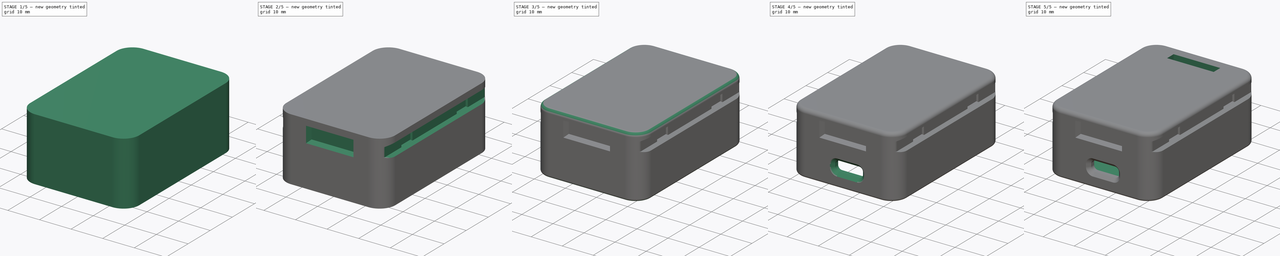
[diagram: build sequence overview — one tinted view per stage of 5, left to right]
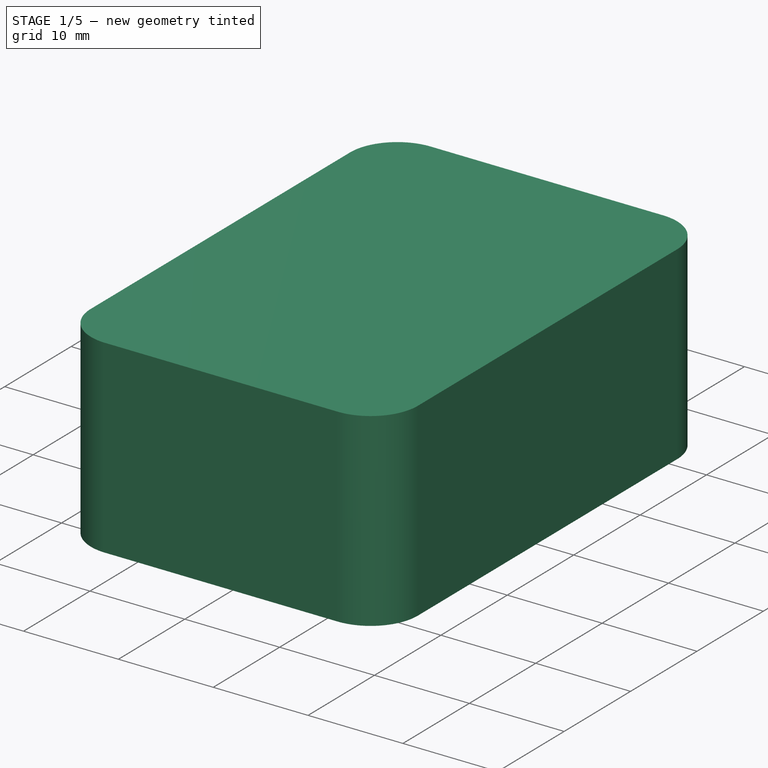
[diagram: stage 1 of 5 — iso view after this stage's code; geometry added in this stage tinted green]
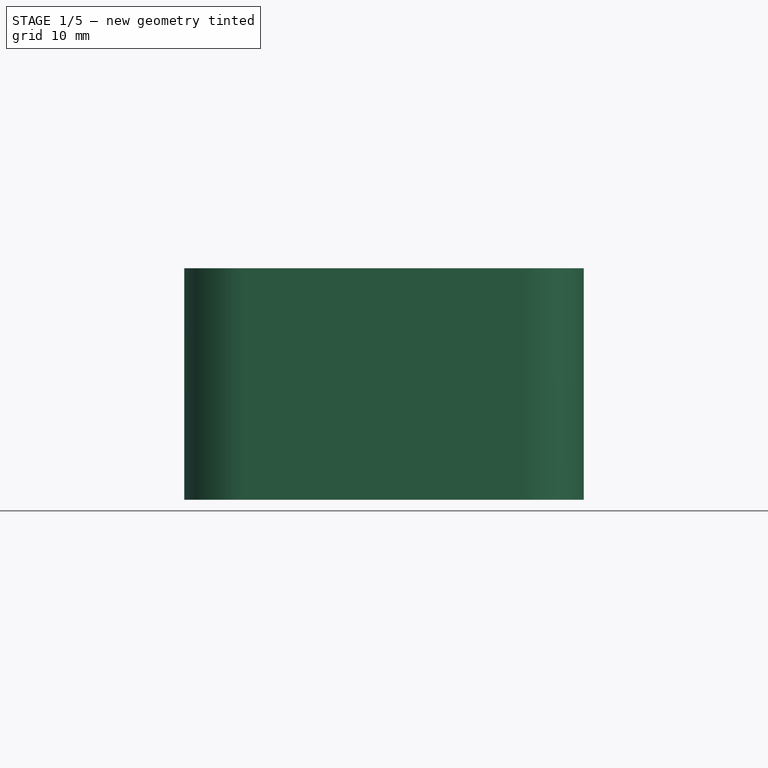
[diagram: stage 1 of 5 — front view after this stage's code; geometry added in this stage tinted green]
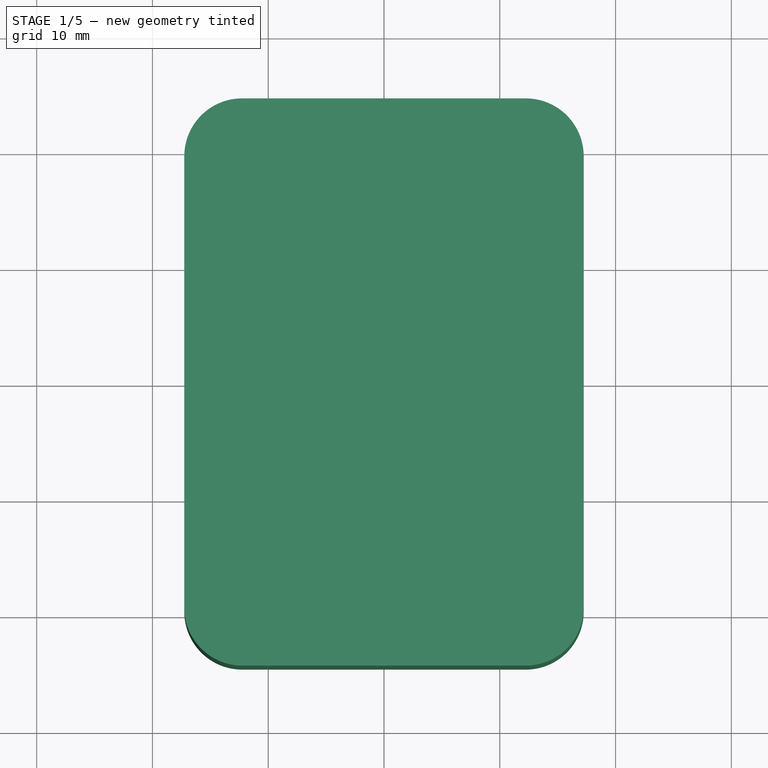
[diagram: stage 1 of 5 — top view after this stage's code; geometry added in this stage tinted green]
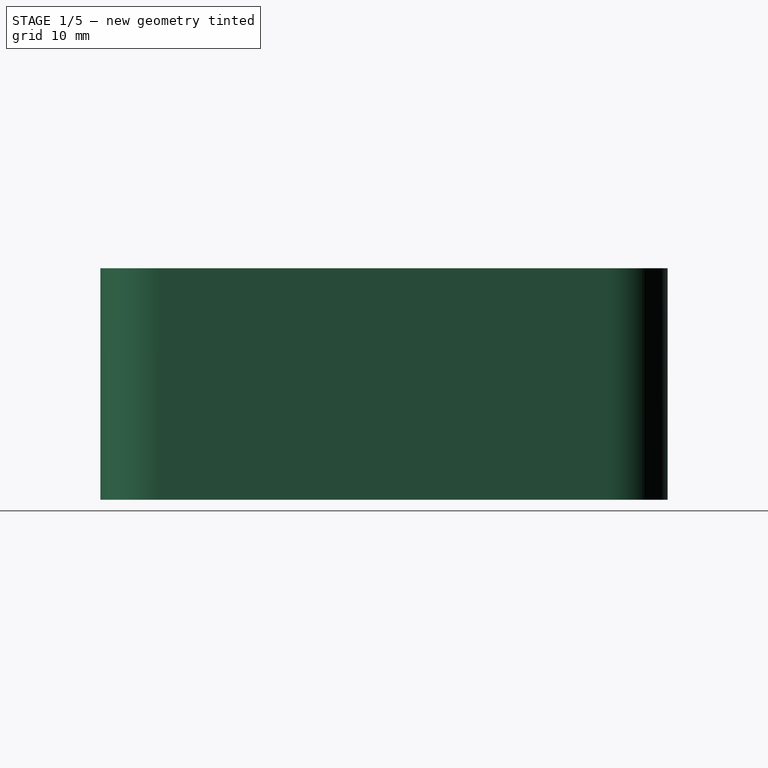
[diagram: stage 1 of 5 — right view after this stage's code; geometry added in this stage tinted green]
FCSTD DOCUMENT  (FreeCAD 1.0R39319 (Git))
Label: M1 Housing
License: All rights reserved
LicenseURL: https://en.wikipedia.org/wiki/All_rights_reserved
objects: Sketcher::SketchObject×24, PartDesign::Pocket×15, PartDesign::Fillet×10, PartDesign::Pad×5, PartDesign::Mirrored×4, PartDesign::Plane×3, PartDesign::Body×3, PartDesign::Chamfer×3, App::DocumentObjectGroup×2, PartDesign::SubShapeBinder×1, Spreadsheet::Sheet×1, Part::Part2DObjectPython×1
note: 163 computed .brp shape members not serialized (recipe doc carries the construction recipe); baked Part::Feature solids carry a one-line shape summary decoded from their .brp

FEATURE [Sketcher::SketchObject] Sketch  label="Board Profile"
  ArcFitTolerance = 1e-06
  AttachmentSupport = -> [XY_Plane]
  FullyConstrained = true
  MakeInternals = false
  MapMode = 5
  expr: Constraints[10] = <<Housing Spreadsheet>>.pcbWidth
  expr: Constraints[11] = <<Housing Spreadsheet>>.pcbLength
  sketch-geometry (5):
    g0: LineSegment StartX=-14.25 StartY=-21.5 StartZ=0 EndX=14.25 EndY=-21.5 EndZ=0
    g1: LineSegment StartX=14.25 StartY=-21.5 StartZ=0 EndX=14.25 EndY=21.5 EndZ=0
    g2: LineSegment StartX=14.25 StartY=21.5 StartZ=0 EndX=-14.25 EndY=21.5 EndZ=0
    g3: LineSegment StartX=-14.25 StartY=21.5 StartZ=0 EndX=-14.25 EndY=-21.5 EndZ=0
    g4: GeomPoint [constr] X=0 Y=0 Z=0
  constraints (12):
    c: Coincident(g0,g1)
    c: Coincident(g1,g2)
    c: Coincident(g2,g3)
    c: Coincident(g3,g0)
    c: Horizontal(g0)
    c: Horizontal(g2)
    c: Vertical(g1)
    c: Vertical(g3)
    c: Symmetric(g2,g0,g4)
    c: Coincident(g4,g-1)
    c: DistanceX(g2,g2) = 28.5
    c: DistanceY(g1,g1) = 43
FEATURE [Sketcher::SketchObject] Sketch001  label="Base Geometry Sketch"
  ArcFitTolerance = 1e-06
  AttachmentSupport = -> [XY_Plane]
  ExternalGeometry = -> [Sketch]
  FullyConstrained = false
  MakeInternals = false
  MapMode = 5
  expr: Constraints[33] = <<Housing Spreadsheet>>.baseGeoOffset
  sketch-geometry (12):
    g0: LineSegment [constr] StartX=-14.25 StartY=21.5 StartZ=0 EndX=-14.25 EndY=-21.5 EndZ=0
    g1: LineSegment [constr] StartX=-14.25 StartY=-21.5 StartZ=0 EndX=14.25 EndY=-21.5 EndZ=0
    g2: LineSegment [constr] StartX=14.25 StartY=-21.5 StartZ=0 EndX=14.25 EndY=21.5 EndZ=0
    g3: LineSegment [constr] StartX=14.25 StartY=21.5 StartZ=0 EndX=-14.25 EndY=21.5 EndZ=0
    g4: LineSegment StartX=17.25 StartY=24.5 StartZ=0 EndX=-17.25 EndY=24.5 EndZ=0
    g5: LineSegment StartX=-17.25 StartY=24.5 StartZ=0 EndX=-17.25 EndY=-24.5 EndZ=0
    g6: LineSegment StartX=-17.25 StartY=-24.5 StartZ=0 EndX=17.25 EndY=-24.5 EndZ=0
    g7: LineSegment StartX=17.25 StartY=-24.5 StartZ=0 EndX=17.25 EndY=24.5 EndZ=0
    g8: LineSegment [constr] StartX=19.975 StartY=24.5 StartZ=0 EndX=19.975 EndY=21.5 EndZ=0
    g9: LineSegment [constr] StartX=-17.25 StartY=26.4015 StartZ=0 EndX=-14.25 EndY=26.4015 EndZ=0
    g10: LineSegment [constr] StartX=-18.9999 StartY=-24.5 StartZ=0 EndX=-18.9999 EndY=-21.5 EndZ=0
    g11: LineSegment [constr] StartX=17.25 StartY=-25 StartZ=0 EndX=14.25 EndY=-25 EndZ=0
  constraints (34):
    c: Coincident(g0,g1)
    c: Coincident(g1,g2)
    c: Coincident(g2,g3)
    c: Coincident(g3,g0)
    c: Vertical(g0)
    c: Vertical(g2)
    c: Horizontal(g1)
    c: Horizontal(g3)
    c: Coincident(g0,g-4)
    c: Coincident(g1,g-6)
    c: Coincident(g4,g5)
    c: Coincident(g4,g7)
    c: Coincident(g5,g6)
    c: Coincident(g6,g7)
    c: Perpendicular(g8,g4)
    c: PointOnObject(g8,g4)
    c: PointOnObject(g8,g3)
    c: Perpendicular(g9,g5)
    c: PointOnObject(g9,g5)
    c: PointOnObject(g9,g0)
    c: Perpendicular(g10,g6)
    c: PointOnObject(g10,g6)
    c: PointOnObject(g10,g1)
    c: Perpendicular(g11,g7)
    c: PointOnObject(g11,g7)
    c: PointOnObject(g11,g2)
    c: Parallel(g7,g2)
    c: Parallel(g4,g3)
    c: Parallel(g5,g0)
    c: Equal(g9,g8)
    c: Parallel(g6,g1)
    c: Equal(g10,g8)
    c: Equal(g11,g8)
    c: Distance(g8,g8) = 3
FEATURE [PartDesign::Pad] Pad  label="Base Geometry"
  Direction = (0,0,1)
  Length = 20
  Length2 = 10
  Profile = -> Sketch001
  ReferenceAxis = -> Sketch001 [N_Axis]
  Refine = true
  Suppressed = false
  Type = 0
  expr: Length = <<Housing Spreadsheet>>.baseGeoPadThickness
FEATURE [Sketcher::SketchObject] Sketch002  label="Battery Pocket Sketch001"
  ArcFitTolerance = 1e-06
  AttachmentSupport = -> [XY_Plane]
  ExternalGeometry = -> [Sketch]
  FullyConstrained = false
  MakeInternals = false
  MapMode = 5
  expr: Constraints[33] = <<Housing Spreadsheet>>.boardPocketOffset
  sketch-geometry (12):
    g0: LineSegment [constr] StartX=14.25 StartY=21.5 StartZ=0 EndX=-14.25 EndY=21.5 EndZ=0
    g1: LineSegment [constr] StartX=-14.25 StartY=21.5 StartZ=0 EndX=-14.25 EndY=-21.5 EndZ=0
    g2: LineSegment [constr] StartX=-14.25 StartY=-21.5 StartZ=0 EndX=14.25 EndY=-21.5 EndZ=0
    g3: LineSegment [constr] StartX=14.25 StartY=-21.5 StartZ=0 EndX=14.25 EndY=21.5 EndZ=0
    g4: LineSegment StartX=14.75 StartY=-22 StartZ=0 EndX=14.75 EndY=22 EndZ=0
    g5: LineSegment StartX=14.75 StartY=22 StartZ=0 EndX=-14.75 EndY=22 EndZ=0
    g6: LineSegment StartX=-14.75 StartY=22 StartZ=0 EndX=-14.75 EndY=-22 EndZ=0
    g7: LineSegment StartX=-14.75 StartY=-22 StartZ=0 EndX=14.75 EndY=-22 EndZ=0
    g8: LineSegment [constr] StartX=14.75 StartY=-21.25 StartZ=0 EndX=14.25 EndY=-21.25 EndZ=0
    g9: LineSegment [constr] StartX=15.25 StartY=22 StartZ=0 EndX=15.25 EndY=21.5 EndZ=0
    g10: LineSegment [constr] StartX=-14.75 StartY=21.25 StartZ=0 EndX=-14.25 EndY=21.25 EndZ=0
    g11: LineSegment [constr] StartX=-15.25 StartY=-22 StartZ=0 EndX=-15.25 EndY=-21.5 EndZ=0
  constraints (34):
    c: Coincident(g0,g1)
    c: Coincident(g1,g2)
    c: Coincident(g2,g3)
    c: Coincident(g3,g0)
    c: Horizontal(g0)
    c: Horizontal(g2)
    c: Vertical(g1)
    c: Vertical(g3)
    c: Coincident(g0,g-4)
    c: Coincident(g1,g-6)
    c: Coincident(g4,g5)
    c: Coincident(g4,g7)
    c: Coincident(g5,g6)
    c: Coincident(g6,g7)
    c: Perpendicular(g8,g4)
    c: PointOnObject(g8,g4)
    c: PointOnObject(g8,g3)
    c: Perpendicular(g9,g5)
    c: PointOnObject(g9,g5)
    c: PointOnObject(g9,g0)
    c: Perpendicular(g10,g6)
    c: PointOnObject(g10,g6)
    c: PointOnObject(g10,g1)
    c: Perpendicular(g11,g7)
    c: PointOnObject(g11,g7)
    c: PointOnObject(g11,g2)
    c: Parallel(g7,g2)
    c: Parallel(g4,g3)
    c: Parallel(g5,g0)
    c: Equal(g9,g8)
    c: Parallel(g6,g1)
    c: Equal(g10,g8)
    c: Equal(g11,g8)
    c: Distance(g8) = 0.5
FEATURE [PartDesign::Pocket] Pocket  label="Board Pocket"
  BaseFeature = -> Pad
  Direction = (0,0,-1)
  Length = 10.5
  Length2 = 5
  Profile = -> Sketch002
  ReferenceAxis = -> Sketch002 [N_Axis]
  Refine = true
  Reversed = true
  Suppressed = false
  Type = 0
  expr: Length = <<Housing Spreadsheet>>.boardPocketDepth
FEATURE [Sketcher::SketchObject] Sketch003  label="Battery Pocket Sketch"
  ArcFitTolerance = 1e-06
  AttachmentSupport = -> [Pocket]
  ExternalGeometry = -> [Sketch002]
  FullyConstrained = true
  MakeInternals = false
  MapMode = 5
  Placement = pos=(0,0,10.5) rot=(1,0,0;3.14159rad)
  expr: Constraints[13] = <<Housing Spreadsheet>>.batteryPocketLength
  expr: Constraints[14] = <<Housing Spreadsheet>>.batteryPocketLedge
  sketch-geometry (7):
    g0: LineSegment [constr] StartX=-14.75 StartY=22 StartZ=0 EndX=-14.75 EndY=-16 EndZ=0
    g1: LineSegment StartX=-14.75 StartY=-16 StartZ=0 EndX=14.75 EndY=-16 EndZ=0
    g2: LineSegment [constr] StartX=14.75 StartY=-16 StartZ=0 EndX=14.75 EndY=22 EndZ=0
    g3: LineSegment [constr] StartX=14.75 StartY=22 StartZ=0 EndX=-14.75 EndY=22 EndZ=0
    g4: LineSegment StartX=-14.75 StartY=20 StartZ=0 EndX=14.75 EndY=20 EndZ=0
    g5: LineSegment StartX=-14.75 StartY=20 StartZ=0 EndX=-14.75 EndY=-16 EndZ=0
    g6: LineSegment StartX=14.75 StartY=20 StartZ=0 EndX=14.75 EndY=-16 EndZ=0
  constraints (19):
    c: Coincident(g0,g1)
    c: Coincident(g1,g2)
    c: Coincident(g2,g3)
    c: Coincident(g3,g0)
    c: Vertical(g0)
    c: Vertical(g2)
    c: Horizontal(g1)
    c: Horizontal(g3)
    c: Coincident(g0,g-4)
    c: PointOnObject(g1,g-6)
    c: PointOnObject(g4,g0)
    c: PointOnObject(g4,g2)
    c: Horizontal(g4)
    c: Distance(g1,g4) = 36
    c: Distance(g3,g4) = 2
    c: Coincident(g5,g4)
    c: Coincident(g5,g0)
    c: Coincident(g6,g4)
    c: Coincident(g6,g1)
FEATURE [PartDesign::Pocket] Pocket001  label="Battery Pocket"
  BaseFeature = -> Pocket
  Direction = (0,0,1)
  Length = 8
  Length2 = 5
  Profile = -> Sketch003
  ReferenceAxis = -> Sketch003 [N_Axis]
  Refine = true
  Suppressed = false
  Type = 0
  expr: Length = <<Housing Spreadsheet>>.batteryPocketDepth
FEATURE [Sketcher::SketchObject] Sketch005  label="Faceplate Removal Pocket Sketch"
  ArcFitTolerance = 1e-06
  AttachmentSupport = -> [XY_Plane]
  ExternalGeometry = -> [Sketch002]
  FullyConstrained = true
  MakeInternals = false
  MapMode = 5
  sketch-geometry (6):
    g0: LineSegment [constr] StartX=-2e-16 StartY=22 StartZ=0 EndX=0 EndY=23.5 EndZ=0
    g1: LineSegment StartX=0 StartY=23.5 StartZ=0 EndX=2.25 EndY=23.5 EndZ=0
    g2: LineSegment StartX=0 StartY=23.5 StartZ=0 EndX=-2.25 EndY=23.5 EndZ=0
    g3: LineSegment StartX=-2.25 StartY=23.5 StartZ=0 EndX=-3.5 EndY=22 EndZ=0
    g4: LineSegment StartX=2.25 StartY=23.5 StartZ=0 EndX=3.5 EndY=22 EndZ=0
    g5: LineSegment StartX=-3.5 StartY=22 StartZ=0 EndX=3.5 EndY=22 EndZ=0
  constraints (17):
    c: Symmetric(g-3,g-3,g0)
    c: PointOnObject(g0,g-2)
    c: Coincident(g1,g0)
    c: Horizontal(g1)
    c: Coincident(g2,g0)
    c: Horizontal(g2)
    c: Equal(g2,g1)
    c: Coincident(g3,g2)
    c: PointOnObject(g3,g-3)
    c: Coincident(g4,g1)
    c: PointOnObject(g4,g-3)
    c: Equal(g4,g3)
    c: Coincident(g5,g3)
    c: Coincident(g5,g4)
    c: DistanceX(g5,g5) = 7
    c: DistanceX(g2,g1) = 4.5
    c: Distance(g5,g1) = 1.5
FEATURE [Sketcher::SketchObject] Sketch006  label="Faceplate Pocket Sketch"
  ArcFitTolerance = 1e-06
  AttachmentSupport = -> [XY_Plane]
  ExternalGeometry = -> [Sketch002]
  FullyConstrained = false
  MakeInternals = false
  MapMode = 5
  sketch-geometry (20):
    g0: LineSegment [constr] StartX=14.75 StartY=22 StartZ=0 EndX=-14.75 EndY=22 EndZ=0
    g1: LineSegment [constr] StartX=-14.75 StartY=22 StartZ=0 EndX=-14.75 EndY=-22 EndZ=0
    g2: LineSegment [constr] StartX=-14.75 StartY=-22 StartZ=0 EndX=14.75 EndY=-22 EndZ=0
    g3: LineSegment [constr] StartX=14.75 StartY=-22 StartZ=0 EndX=14.75 EndY=22 EndZ=0
    g4: LineSegment StartX=15.55 StartY=-18.8 StartZ=0 EndX=15.55 EndY=18.8 EndZ=0
    g5: LineSegment StartX=11.55 StartY=22.8 StartZ=0 EndX=-11.55 EndY=22.8 EndZ=0
    g6: LineSegment StartX=-15.55 StartY=18.8 StartZ=0 EndX=-15.55 EndY=-18.8 EndZ=0
    g7: LineSegment StartX=-11.55 StartY=-22.8 StartZ=0 EndX=11.55 EndY=-22.8 EndZ=0
    g8: LineSegment [constr] StartX=15.55 StartY=-24.3471 StartZ=0 EndX=14.75 EndY=-24.3471 EndZ=0
    g9: LineSegment [constr] StartX=17.847 StartY=22.8 StartZ=0 EndX=17.847 EndY=22 EndZ=0
    g10: LineSegment [constr] StartX=-15.55 StartY=24.3472 StartZ=0 EndX=-14.75 EndY=24.3472 EndZ=0
    g11: LineSegment [constr] StartX=-17.8472 StartY=-22.8 StartZ=0 EndX=-17.8472 EndY=-22 EndZ=0
    g12: ArcOfCircle CenterX=-11.55 CenterY=18.8 CenterZ=0 NormalX=0 NormalY=0 NormalZ=1 AngleXU=0 Radius=4 StartAngle=1.5708 EndAngle=3.14159
    g13: GeomPoint [constr] X=-15.55 Y=22.8 Z=0
    g14: ArcOfCircle CenterX=11.55 CenterY=18.8 CenterZ=0 NormalX=0 NormalY=0 NormalZ=1 AngleXU=0 Radius=4 StartAngle=4e-16 EndAngle=1.5708
    g15: GeomPoint [constr] X=15.55 Y=22.8 Z=0
    g16: ArcOfCircle CenterX=11.55 CenterY=-18.8 CenterZ=0 NormalX=0 NormalY=0 NormalZ=1 AngleXU=0 Radius=4 StartAngle=4.71239 EndAngle=6.28319
    g17: GeomPoint [constr] X=15.55 Y=-22.8 Z=0
    g18: ArcOfCircle CenterX=-11.55 CenterY=-18.8 CenterZ=0 NormalX=0 NormalY=0 NormalZ=1 AngleXU=0 Radius=4 StartAngle=3.14159 EndAngle=4.71239
    g19: GeomPoint [constr] X=-15.55 Y=-22.8 Z=0
  constraints (50):
    c: Coincident(g0,g1)
    c: Coincident(g1,g2)
    c: Coincident(g2,g3)
    c: Coincident(g3,g0)
    c: Horizontal(g0)
    c: Horizontal(g2)
    c: Vertical(g1)
    c: Vertical(g3)
    c: Coincident(g0,g-6)
    c: Coincident(g1,g-4)
    c: Perpendicular(g8,g4)
    c: PointOnObject(g8,g4)
    c: PointOnObject(g8,g3)
    c: Perpendicular(g9,g5)
    c: PointOnObject(g9,g5)
    c: PointOnObject(g9,g0)
    c: Perpendicular(g10,g6)
    c: PointOnObject(g10,g6)
    c: PointOnObject(g10,g1)
    c: Perpendicular(g11,g7)
    c: PointOnObject(g11,g7)
    c: PointOnObject(g11,g2)
    c: Parallel(g7,g2)
    c: Parallel(g4,g3)
    c: Parallel(g5,g0)
    c: Equal(g9,g8)
    c: Parallel(g6,g1)
    c: Equal(g10,g8)
    c: Equal(g11,g8)
    c: PointOnObject(g13,g5)
    c: PointOnObject(g13,g6)
    c: Tangent(g5,g12) = -1.5708
    c: Tangent(g6,g12) = -1.5708
    c: PointOnObject(g15,g5)
    c: PointOnObject(g15,g4)
    c: Tangent(g5,g14) = -1.5708
    c: Tangent(g4,g14) = -1.5708
    c: PointOnObject(g17,g7)
    c: PointOnObject(g17,g4)
    c: Tangent(g7,g16) = -1.5708
    c: Tangent(g4,g16) = -1.5708
    c: PointOnObject(g19,g6)
    c: PointOnObject(g19,g7)
    c: Tangent(g6,g18) = -1.5708
    c: Tangent(g7,g18) = -1.5708
    c: Radius(g16) = 4
    c: Equal(g16,g18)
    c: Equal(g18,g12)
    c: Equal(g12,g14)
    c: Distance(g6,g4) = 31.1
FEATURE [App::DocumentObjectGroup] Measurements
FEATURE [PartDesign::SubShapeBinder] Binder
  BindCopyOnChange = 0
  BindMode = 0
  ClaimChildren = false
  Context = -> Body001 [Binder.]
  Fuse = false
  MakeFace = true
  OffsetFill = false
  OffsetIntersection = false
  OffsetJoinType = 0
  OffsetOpenResult = false
  PartialLoad = false
  Refine = true
  Relative = true
  _Version = 2
FEATURE [PartDesign::Plane] DatumPlane  label="Port Side Plane"
  AttachmentSupport = -> [Pad]
  Length = 60
  MapMode = 5
  Placement = pos=(0,-24.5,0) rot=(1,0,0;1.5708rad)
  ResizeMode = 0
  Width = 60
FEATURE [Sketcher::SketchObject] Sketch007  label="Port Pocket Sketch"
  ArcFitTolerance = 1e-06
  AttachmentSupport = -> [DatumPlane]
  FullyConstrained = true
  MakeInternals = false
  MapMode = 5
  Placement = pos=(0,-24.5,0) rot=(1,0,0;1.5708rad)
  sketch-geometry (6):
    g0: LineSegment StartX=-3.095 StartY=4.19 StartZ=0 EndX=5.855 EndY=4.19 EndZ=0
    g1: LineSegment StartX=5.855 StartY=4.19 StartZ=0 EndX=5.855 EndY=7.44 EndZ=0
    g2: LineSegment StartX=5.855 StartY=7.44 StartZ=0 EndX=-3.095 EndY=7.44 EndZ=0
    g3: LineSegment StartX=-3.095 StartY=7.44 StartZ=0 EndX=-3.095 EndY=4.19 EndZ=0
    g4: GeomPoint [constr] X=1.38 Y=5.815 Z=0
    g5: LineSegment [constr] StartX=1.38 StartY=7.44 StartZ=0 EndX=1.38 EndY=4.19 EndZ=0
  constraints (17):
    c: Coincident(g0,g1)
    c: Coincident(g1,g2)
    c: Coincident(g2,g3)
    c: Coincident(g3,g0)
    c: Horizontal(g0)
    c: Horizontal(g2)
    c: Vertical(g1)
    c: Vertical(g3)
    c: Symmetric(g2,g0,g4)
    c: Distance(g2,g0) = 3.25
    c: DistanceX(g2,g2) = 8.95
    c: Distance(g-3,g2) = 1.56
    c: PointOnObject(g5,g2)
    c: PointOnObject(g5,g0)
    c: Vertical(g5)
    c: PointOnObject(g4,g5)
    c: Distance(g-2,g5) = 1.38
FEATURE [Sketcher::SketchObject] Sketch009  label="Board Screw Placement"
  ArcFitTolerance = 1e-06
  AttachmentSupport = -> [XY_Plane]
  ExternalGeometry = -> [Sketch]
  FullyConstrained = true
  MakeInternals = false
  MapMode = 5
  expr: Constraints[5] = <<Housing Spreadsheet>>.screwholeSquareLength
  sketch-geometry (3):
    g0: LineSegment StartX=11.25 StartY=21.5 StartZ=0 EndX=11.25 EndY=18.5 EndZ=0
    g1: LineSegment StartX=11.25 StartY=18.5 StartZ=0 EndX=14.25 EndY=18.5 EndZ=0
    g2: GeomPoint [constr] X=11.25 Y=18.5 Z=0
  constraints (8):
    c: Coincident(g0,g1)
    c: Horizontal(g1)
    c: Vertical(g0)
    c: Coincident(g2,g0)
    c: Equal(g0,g1)
    c: Distance(g0,g0) = 3
    c: PointOnObject(g0,g-3)
    c: PointOnObject(g1,g-4)
FEATURE [Sketcher::SketchObject] Sketch008  label="Heat-Set Insert Pocket Sketch"
  ArcFitTolerance = 1e-06
  AttachmentSupport = -> [Pocket001]
  ExternalGeometry = -> [Sketch009]
  FullyConstrained = true
  MakeInternals = false
  MapMode = 5
  Placement = pos=(0,0,10.5) rot=(1,0,0;3.14159rad)
  expr: Constraints[1] = <<Housing Spreadsheet>>.screwholeDiameter
  sketch-geometry (1):
    g0: Circle CenterX=11.25 CenterY=-18.5 CenterZ=0 NormalX=0 NormalY=0 NormalZ=1 AngleXU=0 Radius=0.8
  constraints (2):
    c: Coincident(g0,g-4)
    c: Diameter(g0) = 1.6
FEATURE [PartDesign::Pocket] Pocket006  label="Heat-Set Insert Pocket"
  BaseFeature = -> Pocket001
  Direction = (0,0,1)
  Length = 8
  Length2 = 5
  Profile = -> Sketch008
  ReferenceAxis = -> Sketch008 [N_Axis]
  Refine = true
  Suppressed = false
  Type = 0
  expr: Length = <<Housing Spreadsheet>>.screwholeDepth
FEATURE [PartDesign::Mirrored] Mirrored001  label="Heat-Set Insert Mirror"
  BaseFeature = -> Pocket006
  MirrorPlane = -> YZ_Plane
  Originals = -> [Pocket006]
  Refine = true
  Suppressed = false
  TransformMode = 0
FEATURE [PartDesign::Fillet] Fillet  label="Outer Corner Fillets"
  Base = -> Mirrored001 [Edge5,Edge8,Edge2,Edge1]
  BaseFeature = -> Mirrored001
  Radius = 5
  Refine = true
  SupportTransform = false
  Suppressed = false
  UseAllEdges = false
  expr: Radius = <<Housing Spreadsheet>>.baseGeoOuterCornerFillets
FEATURE [PartDesign::Fillet] Fillet001  label="Screw Side Fillets"
  Base = -> Fillet [Edge36,Edge35]
  BaseFeature = -> Fillet
  Radius = 2
  Refine = true
  SupportTransform = false
  Suppressed = false
  UseAllEdges = false
  expr: Radius = <<Housing Spreadsheet>>.boardPocketScrewSideFillets
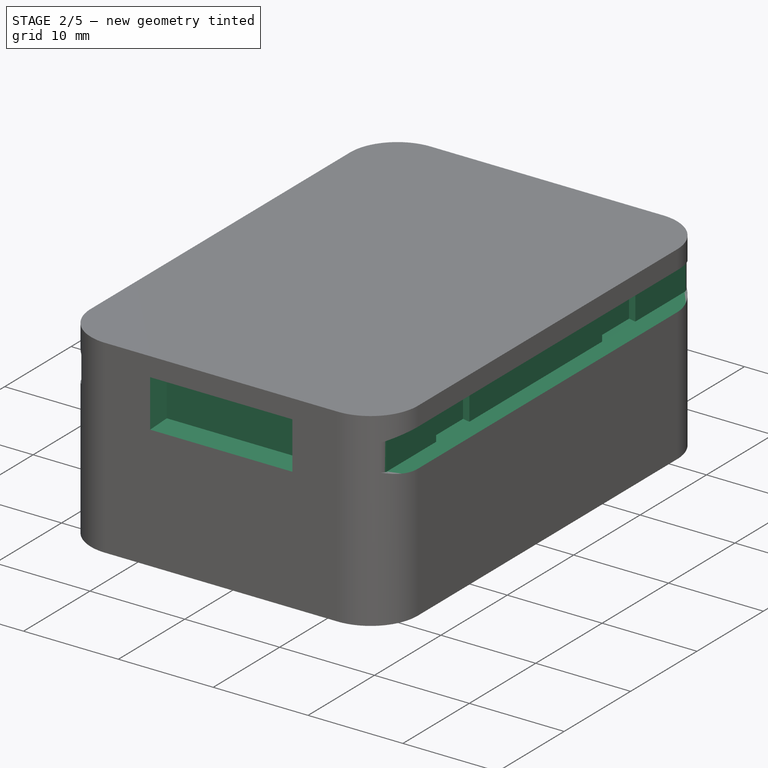
[diagram: stage 2 of 5 — iso view after this stage's code; geometry added in this stage tinted green]
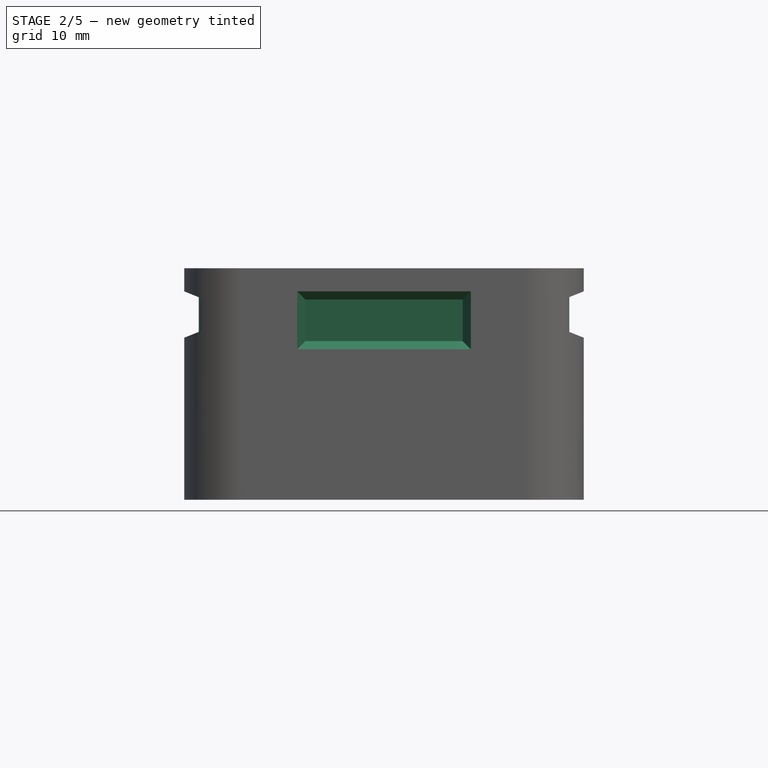
[diagram: stage 2 of 5 — front view after this stage's code; geometry added in this stage tinted green]
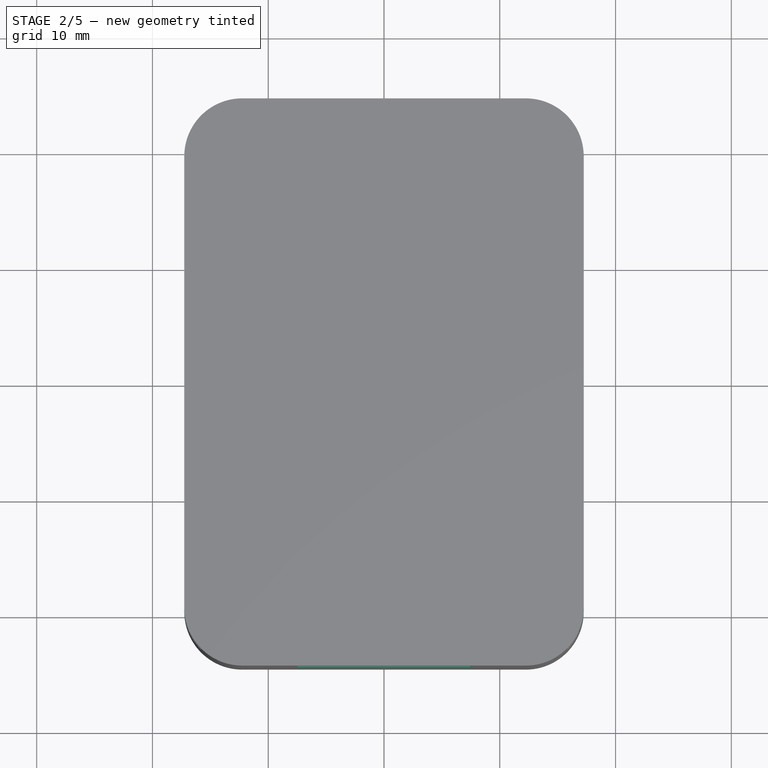
[diagram: stage 2 of 5 — top view after this stage's code; geometry added in this stage tinted green]
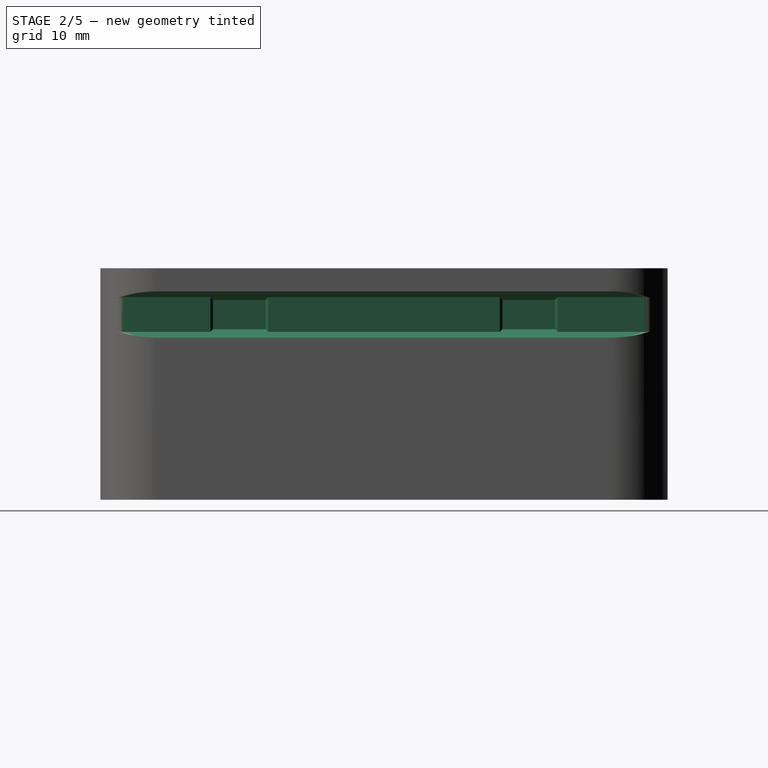
[diagram: stage 2 of 5 — right view after this stage's code; geometry added in this stage tinted green]
FEATURE [PartDesign::Fillet] Fillet002  label="Port Side Fillets"
  Base = -> Fillet001 [Edge24,Edge19]
  BaseFeature = -> Fillet001
  Radius = 2
  Refine = true
  SupportTransform = false
  Suppressed = false
  UseAllEdges = false
  expr: Radius = <<Housing Spreadsheet>>.boardPocketPortSideFillets
FEATURE [Sketcher::SketchObject] Sketch004  label="Mounting Slot Pocket Sketch"
  ArcFitTolerance = 1e-06
  AttachmentSupport = -> [XZ_Plane]
  ExternalGeometry = -> [Fillet002]
  FullyConstrained = true
  MakeInternals = false
  MapMode = 5
  Placement = pos=(0,0,0) rot=(1,0,0;1.5708rad)
  expr: Constraints[11] = <<Housing Spreadsheet>>.mountingSlotInnerWidth
  expr: Constraints[5] = <<Housing Spreadsheet>>.mountingSlotOuterWidth
  expr: Constraints[6] = <<Housing Spreadsheet>>.mountingSlotDepth
  expr: Constraints[7] = <<Housing Spreadsheet>>.mountingSlotOffset
  sketch-geometry (4):
    g0: LineSegment StartX=-17.25 StartY=18 StartZ=0 EndX=-16 EndY=17.5 EndZ=0
    g1: LineSegment StartX=-16 StartY=17.5 StartZ=0 EndX=-16 EndY=14.5 EndZ=0
    g2: LineSegment StartX=-17.25 StartY=18 StartZ=0 EndX=-17.25 EndY=14 EndZ=0
    g3: LineSegment StartX=-17.25 StartY=14 StartZ=0 EndX=-16 EndY=14.5 EndZ=0
  constraints (12):
    c: PointOnObject(g0,g-3)
    c: Coincident(g1,g0)
    c: Vertical(g1)
    c: Coincident(g2,g0)
    c: PointOnObject(g2,g-3)
    c: DistanceY(g2,g2) = 4
    c: Distance(g1,g2) = 1.25
    c: DistanceY(g0,g-3) = 2
    c: Coincident(g1,g3)
    c: Equal(g3,g0)
    c: Coincident(g3,g2)
    c: DistanceY(g1,g1) = 3
FEATURE [PartDesign::Pocket] Pocket002  label="Mounting Slot Pocket"
  BaseFeature = -> Fillet002
  Direction = (0,1,-2e-16)
  Length = 5
  Length2 = 5
  Midplane = true
  Profile = -> Sketch004
  ReferenceAxis = -> Sketch004 [N_Axis]
  Refine = true
  Suppressed = false
  Type = 1
FEATURE [PartDesign::Fillet] Fillet004  label="Mounting Slot End Fillet"
  Base = -> Pocket002 [Edge47,Edge57]
  BaseFeature = -> Pocket002
  Radius = 1
  Refine = true
  SupportTransform = false
  Suppressed = false
  UseAllEdges = false
  expr: Radius = <<Housing Spreadsheet>>.mountingSlotEndFillet
FEATURE [Sketcher::SketchObject] Sketch011  label="Clip Pocket Sketch"
  ArcFitTolerance = 1e-06
  AttachmentSupport = -> [DatumPlane]
  FullyConstrained = true
  MakeInternals = false
  MapMode = 5
  Placement = pos=(0,-24.5,0) rot=(1,0,0;1.5708rad)
  expr: Constraints[10] = <<Housing Spreadsheet>>.mountingClipHeight
  expr: Constraints[11] = <<Housing Spreadsheet>>.mountingClipWidth
  expr: Constraints[12] = <<Housing Spreadsheet>>.mountingClipOffset
  sketch-geometry (5):
    g0: LineSegment StartX=-7.5 StartY=13 StartZ=0 EndX=7.5 EndY=13 EndZ=0
    g1: LineSegment StartX=7.5 StartY=13 StartZ=0 EndX=7.5 EndY=18 EndZ=0
    g2: LineSegment StartX=7.5 StartY=18 StartZ=0 EndX=-7.5 EndY=18 EndZ=0
    g3: LineSegment StartX=-7.5 StartY=18 StartZ=0 EndX=-7.5 EndY=13 EndZ=0
    g4: GeomPoint [constr] X=0 Y=15.5 Z=0
  constraints (13):
    c: Coincident(g0,g1)
    c: Coincident(g1,g2)
    c: Coincident(g2,g3)
    c: Coincident(g3,g0)
    c: Horizontal(g0)
    c: Horizontal(g2)
    c: Vertical(g1)
    c: Vertical(g3)
    c: Symmetric(g2,g0,g4)
    c: PointOnObject(g4,g-2)
    c: DistanceY(g1,g1) = 5
    c: DistanceX(g2,g2) = 15
    c: Distance(g-1,g0) = 13
FEATURE [Sketcher::SketchObject] Sketch012  label="Mounting Lock Pockets Sketch"
  ArcFitTolerance = 1e-06
  AttachmentSupport = -> [Pocket002]
  ExternalGeometry = -> [Pocket002]
  FullyConstrained = true
  MakeInternals = false
  MapMode = 5
  Placement = pos=(-16,0,0) rot=(0.57735,-0.57735,-0.57735;2.0944rad)
  expr: Constraints[28] = <<Housing Spreadsheet>>.mountingSlotLockPitch
  expr: Constraints[29] = <<Housing Spreadsheet>>.mountingSlotLockWidth
  sketch-geometry (11):
    g0: LineSegment StartX=-15 StartY=17.5 StartZ=0 EndX=-15 EndY=14.5 EndZ=0
    g1: LineSegment StartX=-15 StartY=14.5 StartZ=0 EndX=-10 EndY=14.5 EndZ=0
    g2: LineSegment StartX=-10 StartY=14.5 StartZ=0 EndX=-10 EndY=17.5 EndZ=0
    g3: LineSegment StartX=-10 StartY=17.5 StartZ=0 EndX=-15 EndY=17.5 EndZ=0
    g4: LineSegment [constr] StartX=-3.04e-14 StartY=17.5 StartZ=0 EndX=-3.19e-14 EndY=14.5 EndZ=0
    g5: LineSegment [constr] StartX=-10 StartY=16 StartZ=0 EndX=-3.2e-14 EndY=16 EndZ=0
    g6: LineSegment StartX=10 StartY=17.5 StartZ=0 EndX=10 EndY=14.5 EndZ=0
    g7: LineSegment StartX=10 StartY=14.5 StartZ=0 EndX=15 EndY=14.5 EndZ=0
    g8: LineSegment StartX=15 StartY=14.5 StartZ=0 EndX=15 EndY=17.5 EndZ=0
    g9: LineSegment StartX=15 StartY=17.5 StartZ=0 EndX=10 EndY=17.5 EndZ=0
    g10: LineSegment [constr] StartX=10 StartY=16 StartZ=0 EndX=-3.2e-14 EndY=16 EndZ=0
  constraints (30):
    c: Coincident(g0,g1)
    c: Coincident(g1,g2)
    c: Coincident(g2,g3)
    c: Coincident(g3,g0)
    c: Vertical(g0)
    c: Vertical(g2)
    c: Horizontal(g1)
    c: Horizontal(g3)
    c: PointOnObject(g0,g-3)
    c: PointOnObject(g1,g-4)
    c: Symmetric(g-3,g-3,g4)
    c: Symmetric(g-4,g-4,g4)
    c: Symmetric(g2,g2,g5)
    c: Symmetric(g4,g4,g5)
    c: Coincident(g6,g7)
    c: Coincident(g7,g8)
    c: Coincident(g8,g9)
    c: Coincident(g9,g6)
    c: Vertical(g6)
    c: Vertical(g8)
    c: Horizontal(g7)
    c: Horizontal(g9)
    c: PointOnObject(g6,g-3)
    c: PointOnObject(g7,g-4)
    c: Equal(g9,g3)
    c: Symmetric(g6,g6,g10)
    c: Coincident(g10,g5)
    c: Equal(g10,g5)
    c: Distance(g6,g2) = 20
    c: DistanceX(g9,g9) = 5
FEATURE [PartDesign::Pocket] Pocket008  label="Mounting Lock Pockets"
  BaseFeature = -> Fillet004
  Direction = (1,0,0)
  Length = 0.5
  Length2 = 5
  Profile = -> Sketch012
  ReferenceAxis = -> Sketch012 [N_Axis]
  Refine = true
  Suppressed = false
  TaperAngle = -25
  Type = 0
  expr: Length = <<Housing Spreadsheet>>.mountingSlotLockDepth
  expr: TaperAngle = <<Housing Spreadsheet>>.mountingSlotLockTaperAngle
FEATURE [PartDesign::Mirrored] Mirrored  label="Mounting Slot Mirror"
  BaseFeature = -> Pocket008
  MirrorPlane = -> YZ_Plane
  Originals = -> [Pocket002,Fillet004,Pocket008]
  Refine = true
  Suppressed = false
  TransformMode = 0
FEATURE [PartDesign::Pocket] Pocket007  label="Clip Pocket"
  BaseFeature = -> Mirrored
  Direction = (0,1,-2e-16)
  Length = 1.5
  Length2 = 5
  Profile = -> Sketch011
  ReferenceAxis = -> Sketch011 [N_Axis]
  Refine = true
  Suppressed = false
  TaperAngle = -25
  Type = 0
FEATURE [PartDesign::Mirrored] Mirrored002  label="Clip Pocket Mirror"
  BaseFeature = -> Pocket007
  MirrorPlane = -> XZ_Plane
  Originals = -> [Pocket007]
  Refine = true
  Suppressed = false
  TransformMode = 0
FEATURE [PartDesign::Pocket] Pocket004  label="Faceplate Pocket"
  BaseFeature = -> Mirrored002
  Direction = (0,0,-1)
  Length = 3.15
  Length2 = 5
  Profile = -> Sketch006
  ReferenceAxis = -> Sketch006 [N_Axis]
  Refine = true
  Reversed = true
  Suppressed = false
  Type = 0
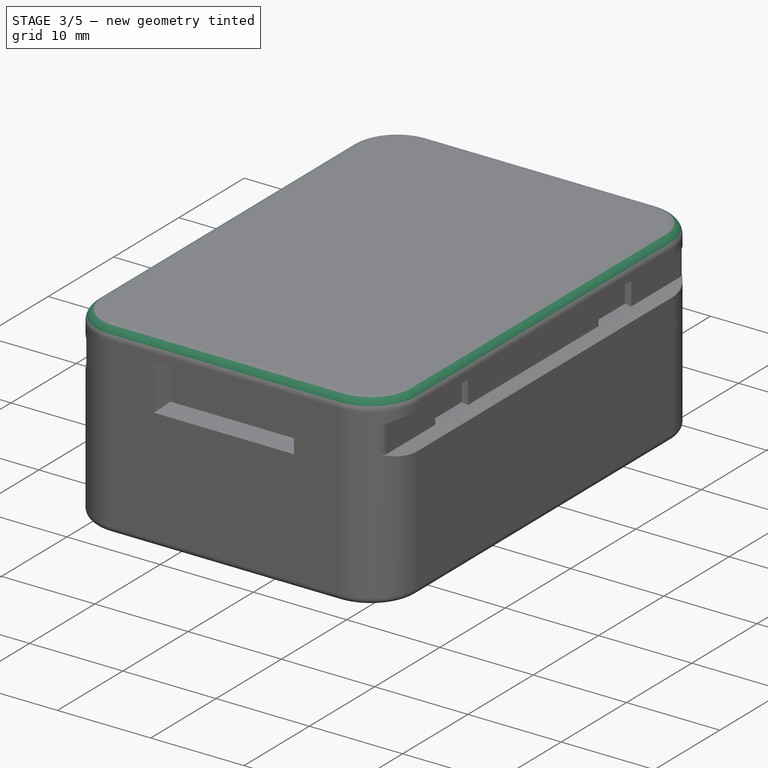
[diagram: stage 3 of 5 — iso view after this stage's code; geometry added in this stage tinted green]
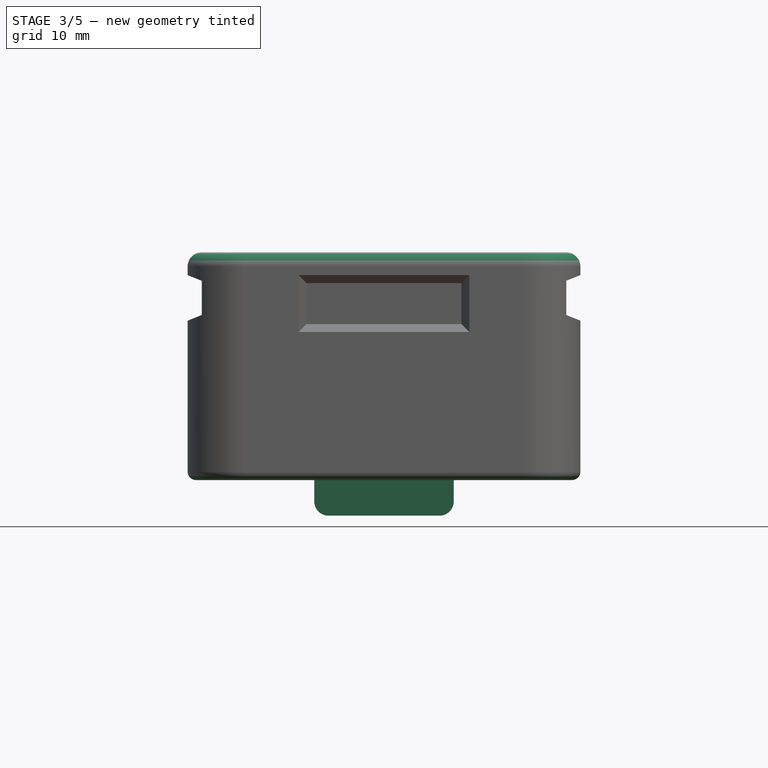
[diagram: stage 3 of 5 — front view after this stage's code; geometry added in this stage tinted green]
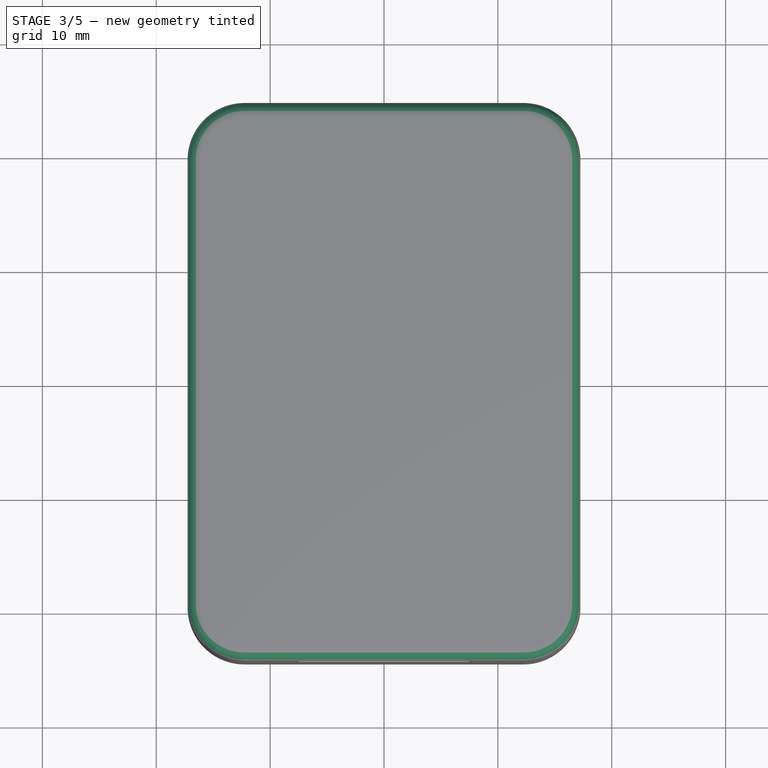
[diagram: stage 3 of 5 — top view after this stage's code; geometry added in this stage tinted green]
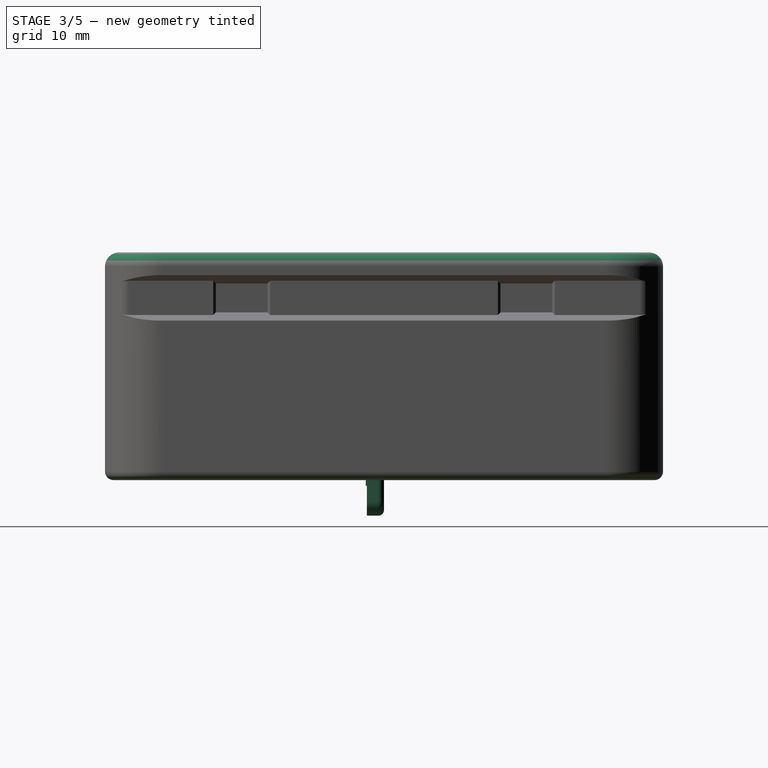
[diagram: stage 3 of 5 — right view after this stage's code; geometry added in this stage tinted green]
FEATURE [PartDesign::Plane] DatumPlane001  label="Button Side Plane"
  AttachmentSupport = -> [Pad]
  Length = 60
  MapMode = 5
  Placement = pos=(-17.25,0,0) rot=(0.57735,-0.57735,-0.57735;2.0944rad)
  ResizeMode = 0
  Width = 60
FEATURE [Sketcher::SketchObject] Sketch014  label="Board Level"
  ArcFitTolerance = 1e-06
  AttachmentSupport = -> [DatumPlane001]
  FullyConstrained = false
  MakeInternals = false
  MapMode = 5
  Placement = pos=(-17.25,0,0) rot=(0.57735,-0.57735,-0.57735;2.0944rad)
  sketch-geometry (2):
    g0: LineSegment StartX=0 StartY=8.9 StartZ=0 EndX=15.8803 EndY=8.9 EndZ=0
    g1: LineSegment StartX=0 StartY=8.9 StartZ=0 EndX=-15.8803 EndY=8.9 EndZ=0
  constraints (6):
    c: PointOnObject(g0,g-2)
    c: Horizontal(g0)
    c: Coincident(g1,g0)
    c: Horizontal(g1)
    c: Equal(g1,g0)
    c: Distance(g-1,g0) = 8.9
FEATURE [Sketcher::SketchObject] Sketch013
  ArcFitTolerance = 1e-06
  AttachmentSupport = -> [DatumPlane001]
  ExternalGeometry = -> [Sketch014]
  FullyConstrained = true
  MakeInternals = false
  MapMode = 5
  Placement = pos=(-17.25,0,0) rot=(0.57735,-0.57735,-0.57735;2.0944rad)
  sketch-geometry (5):
    g0: LineSegment StartX=-13.05 StartY=6.48 StartZ=0 EndX=-8.05 EndY=6.48 EndZ=0
    g1: LineSegment StartX=-8.05 StartY=6.48 StartZ=0 EndX=-8.05 EndY=7.78 EndZ=0
    g2: LineSegment StartX=-8.05 StartY=7.78 StartZ=0 EndX=-13.05 EndY=7.78 EndZ=0
    g3: LineSegment StartX=-13.05 StartY=7.78 StartZ=0 EndX=-13.05 EndY=6.48 EndZ=0
    g4: GeomPoint [constr] X=-10.55 Y=7.13 Z=0
  constraints (13):
    c: Coincident(g0,g1)
    c: Coincident(g1,g2)
    c: Coincident(g2,g3)
    c: Coincident(g3,g0)
    c: Horizontal(g0)
    c: Horizontal(g2)
    c: Vertical(g1)
    c: Vertical(g3)
    c: Symmetric(g2,g0,g4)
    c: Distance(g0,g2) = 1.3
    c: DistanceX(g2,g2) = 5
    c: Distance(g-2,g1) = 8.05
    c: Distance(g2,g-3) = 1.12
FEATURE [Sketcher::SketchObject] Sketch016
  ArcFitTolerance = 1e-06
  AttachmentSupport = -> [DatumPlane001]
  ExternalGeometry = -> [Sketch014]
  FullyConstrained = true
  MakeInternals = false
  MapMode = 5
  Placement = pos=(-17.25,0,0) rot=(0.57735,-0.57735,-0.57735;2.0944rad)
  sketch-geometry (5):
    g0: LineSegment StartX=-3.5 StartY=9.9 StartZ=0 EndX=-3.5 EndY=5.9 EndZ=0
    g1: LineSegment StartX=-3.5 StartY=5.9 StartZ=0 EndX=6.5 EndY=5.9 EndZ=0
    g2: LineSegment StartX=6.5 StartY=5.9 StartZ=0 EndX=6.5 EndY=9.9 EndZ=0
    g3: LineSegment StartX=6.5 StartY=9.9 StartZ=0 EndX=-3.5 EndY=9.9 EndZ=0
    g4: LineSegment [constr] StartX=-3.5 StartY=7.9 StartZ=0 EndX=6.5 EndY=7.9 EndZ=0
  constraints (14):
    c: Coincident(g0,g1)
    c: Coincident(g1,g2)
    c: Coincident(g2,g3)
    c: Coincident(g3,g0)
    c: Vertical(g0)
    c: Vertical(g2)
    c: Horizontal(g1)
    c: Horizontal(g3)
    c: DistanceY(g2,g2) = 4
    c: Symmetric(g0,g0,g4)
    c: Symmetric(g2,g2,g4)
    c: Distance(g-3,g4) = 1
    c: Distance(g3,g3) = 10
    c: Distance(g2,g-2) = 6.5
FEATURE [PartDesign::Plane] DatumPlane002  label="Control Cut Plane"
  AttachmentOffset = pos=(0,0,1) rot=(0,0,1;0rad)
  AttachmentSupport = -> [DatumPlane001]
  Length = 60
  MapMode = 5
  Placement = pos=(-16.25,0,0) rot=(0.57735,0.57735,0.57735;2.0944rad)
  ResizeMode = 0
  Width = 60
FEATURE [Sketcher::SketchObject] Sketch018
  ArcFitTolerance = 1e-06
  AttachmentSupport = -> [DatumPlane001]
  ExternalGeometry = -> [Sketch014]
  FullyConstrained = true
  MakeInternals = false
  MapMode = 5
  Placement = pos=(-17.25,0,0) rot=(0.57735,-0.57735,-0.57735;2.0944rad)
  sketch-geometry (1):
    g0: Circle CenterX=13.6 CenterY=8.15 CenterZ=0 NormalX=0 NormalY=0 NormalZ=1 AngleXU=0 Radius=0.75
  constraints (3):
    c: Diameter(g0) = 1.5
    c: Distance(g0,g-3) = 0.75
    c: DistanceX(g-1,g0) = 13.6
FEATURE [Spreadsheet::Sheet] Spreadsheet  label="Housing Spreadsheet"
  cells = B1='Measurements; C1='Tolerance; D1='Output; G1='Measurements; H1='Tolerance; I1='Output; A2='Lower Housing Base; F2='Multi-Button; A3='PCB Length; B3==43 mm; C3==0 mm; D3(pcbLength)==B3 + C3; F3='Multi-Button Fillet; G3==1 mm; H3==0 mm; I3(multiButtonFillet)==G3 + H3; A4='PCB Width; B4==28.5 mm; C4==0 mm; D4(pcbWidth)==B4 + C4; F4='Multi-Button Length; G4==3 mm; H4==-0.25 mm; I4(multiButtonLength)==G4 + H4; A5='Base Offset; B5==3 mm; C5==0 mm; D5(baseGeoOffset)==B5 + C5; F5='Multi-Button Width; G5==10 mm; H5==-0.25 mm; I5(multiButtonWidth)==G5 + H5; A6='Base Geometry Pad Thickness; B6==20 mm; C6==0 mm; D6(baseGeoPadThickness)==B6 + C6; F6='Multi-Button Height; G6==4 mm; H6==-0.25 mm; I6(multiButtonHeight)==G6 + H6; A7='Board Pocket Offset; B7==0.5 mm; C7==0 mm; D7(boardPocketOffset)==B7 + C7; F7='Multi-Button Outer Chamfer; G7==0.25 mm; H7==0 mm; I7(multiButtonChamfer)==G7 + H7; A8='Board Pocket Depth; B8==10.5 mm; C8==0 mm; D8(boardPocketDepth)==B8 + C8; F8='Multi-Button Base Offset; G8==1.5 mm; H8==-0.25 mm; I8(multiButtonBaseOffset)==G8 + H8; A9='Board Pocket Screw Side Fillets; B9==2 mm; C9==0 mm; D9(boardPocketScrewSideFillets)==B9 + C9; F9='Multi-Button Base Length; G9==1.75 mm; H9==-0.25 mm; I9(multiButtonBaseLength)==G9 + H9; A10='Board Pocket Port Side Fillets; B10==2 mm; C10==0 mm; D10(boardPocketPortSideFillets)==B10 + C10; F10='Multi-Button Base Contact Fillet; G10==0.5 mm; H10==0 mm; I10(multiButtonBaseContactFillet)==G10 + H10; A11='Battery Pocket Length; B11==36 mm; C11==0 mm; D11(batteryPocketLength)==B11 + C11; A12='Battery Pocket Port Side Ledge; B12==2 mm; C12==0 mm; D12(batteryPocketLedge)==B12 + C12; A13='Battery Pocket Depth; B13==8 mm; C13==0 mm; D13(batteryPocketDepth)==B13 + C13; A14='Outer Corner Fillets; B14==5 mm; C14==0 mm; D14(baseGeoOuterCornerFillets)==B14 + C14; A16='Screw Square Length; B16==3 mm; C16==0 mm; D16(screwholeSquareLength)==B16 + C16; A17='Screw Hole Diameter; B17==1.6 mm; C17==0 mm; D17(screwholeDiameter)==B17 + C17; A18='Screw Hole Depth; B18==8 mm; C18==0 mm; D18(screwholeDepth)==B18 + C18; A19='Mounting; A20='Mounting Slot Offset; B20==2 mm; C20==0 mm; D20(mountingSlotOffset)==B20 + C20; A21='Mounting Slot Inner Width; B21==3 mm; C21==0 mm; D21(mountingSlotInnerWidth)==B21 + C21; A22='Mounting Slot Outer Width; B22==4 mm; C22==0 mm; D22(mountingSlotOuterWidth)==B22 + C22; A23='Mounting Slot Depth; B23==1.25 mm; C23==0 mm; D23(mountingSlotDepth)==B23 + C23; A24='Mounting Slot End Fillet; B24==1 mm; C24==0 mm; D24(mountingSlotEndFillet)==B24 + C24; A25='Mounting Slot Lock Width; B25==5 mm; C25==0 mm; D25(mountingSlotLockWidth)==B25 + C25; A26='Mounting Slot Lock Pitch; B26==20 mm; C26==0 mm; D26(mountingSlotLockPitch)==B26 + C26; A27='Mounting Slot Lock Depth; B27==0.5 mm; C27==0 mm; D27(mountingSlotLockDepth)==B27 + C27; A28='Mounting Slot Lock Taper Angle; B28=-25; C28=0; D28(mountingSlotLockTaperAngle)==B28 + C28; A29='Mounting Clip Offset; B29==13 mm; C29==0 mm; D29(mountingClipOffset)==B29 + C29; A30='Mounting Clip Width; B30==15 mm; C30==0 mm; D30(mountingClipWidth)==B30 + C30; A31='Mounting Clip Height; B31==5 mm; C31==0 mm; D31(mountingClipHeight)==B31 + C31; A32='Mounting Clip Depth; B32==1.5 mm; C32==0 mm; D32(mountingClipDepth)==B32 + C32
FEATURE [Sketcher::SketchObject] Sketch019
  ArcFitTolerance = 1e-06
  AttachmentSupport = -> [XZ_Plane039]
  FullyConstrained = true
  MakeInternals = false
  MapMode = 5
  Placement = pos=(0,0,0) rot=(1,0,0;1.5708rad)
  expr: Constraints[10] = <<Housing Spreadsheet>>.multiButtonHeight
  expr: Constraints[11] = <<Housing Spreadsheet>>.multiButtonWidth
  sketch-geometry (5):
    g0: LineSegment StartX=-4.875 StartY=-1.875 StartZ=0 EndX=4.875 EndY=-1.875 EndZ=0
    g1: LineSegment StartX=4.875 StartY=-1.875 StartZ=0 EndX=4.875 EndY=1.875 EndZ=0
    g2: LineSegment StartX=4.875 StartY=1.875 StartZ=0 EndX=-4.875 EndY=1.875 EndZ=0
    g3: LineSegment StartX=-4.875 StartY=1.875 StartZ=0 EndX=-4.875 EndY=-1.875 EndZ=0
    g4: GeomPoint [constr] X=0 Y=0 Z=0
  constraints (12):
    c: Coincident(g0,g1)
    c: Coincident(g1,g2)
    c: Coincident(g2,g3)
    c: Coincident(g3,g0)
    c: Horizontal(g0)
    c: Horizontal(g2)
    c: Vertical(g1)
    c: Vertical(g3)
    c: Symmetric(g2,g0,g4)
    c: Coincident(g4,g-1)
    c: DistanceY(g1,g1) = 3.75
    c: DistanceX(g2,g2) = 9.75
FEATURE [Sketcher::SketchObject] Sketch020
  ArcFitTolerance = 1e-06
  AttachmentSupport = -> [XZ_Plane039]
  FullyConstrained = true
  MakeInternals = false
  MapMode = 5
  Placement = pos=(0,0,0) rot=(1,0,0;1.5708rad)
  expr: Constraints[10] = <<Housing Spreadsheet>>.multiButtonHeight
  expr: Constraints[11] = <<Housing Spreadsheet>>.multiButtonWidth
  expr: Constraints[27] = <<Housing Spreadsheet>>.multiButtonBaseOffset
  sketch-geometry (13):
    g0: LineSegment [constr] StartX=-4.875 StartY=-1.875 StartZ=0 EndX=4.875 EndY=-1.875 EndZ=0
    g1: LineSegment [constr] StartX=4.875 StartY=-1.875 StartZ=0 EndX=4.875 EndY=1.875 EndZ=0
    g2: LineSegment [constr] StartX=4.875 StartY=1.875 StartZ=0 EndX=-4.875 EndY=1.875 EndZ=0
    g3: LineSegment [constr] StartX=-4.875 StartY=1.875 StartZ=0 EndX=-4.875 EndY=-1.875 EndZ=0
    g4: GeomPoint [constr] X=0 Y=0 Z=0
    g5: LineSegment StartX=-6.125 StartY=1.875 StartZ=0 EndX=-6.125 EndY=-1.875 EndZ=0
    g6: ArcOfCircle CenterX=-4.875 CenterY=-1.875 CenterZ=0 NormalX=0 NormalY=0 NormalZ=-1 AngleXU=-3.14159 Radius=1.25 StartAngle=1.5708 EndAngle=3.14159
    g7: LineSegment StartX=-4.875 StartY=-3.125 StartZ=0 EndX=4.875 EndY=-3.125 EndZ=0
    g8: ArcOfCircle CenterX=4.875 CenterY=-1.875 CenterZ=0 NormalX=0 NormalY=0 NormalZ=-1 AngleXU=1.5708 Radius=1.25 StartAngle=1.5708 EndAngle=3.14159
    g9: LineSegment StartX=6.125 StartY=-1.875 StartZ=0 EndX=6.125 EndY=1.875 EndZ=0
    g10: ArcOfCircle CenterX=4.875 CenterY=1.875 CenterZ=0 NormalX=0 NormalY=0 NormalZ=-1 AngleXU=0 Radius=1.25 StartAngle=1.5708 EndAngle=3.14159
    g11: LineSegment StartX=4.875 StartY=3.125 StartZ=0 EndX=-4.875 EndY=3.125 EndZ=0
    g12: ArcOfCircle CenterX=-4.875 CenterY=1.875 CenterZ=0 NormalX=0 NormalY=0 NormalZ=-1 AngleXU=-1.5708 Radius=1.25 StartAngle=1.5708 EndAngle=3.14159
  constraints (28):
    c: Coincident(g0,g1)
    c: Coincident(g1,g2)
    c: Coincident(g2,g3)
    c: Coincident(g3,g0)
    c: Horizontal(g0)
    c: Horizontal(g2)
    c: Vertical(g1)
    c: Vertical(g3)
    c: Symmetric(g2,g0,g4)
    c: Coincident(g4,g-1)
    c: Distance(g1,g1) = 3.75
    c: DistanceX(g2,g2) = 9.75
    c: Tangent(g5,g6) = -1.5708
    c: Tangent(g5,g12) = -1.5708
    c: Tangent(g6,g7) = -1.5708
    c: Tangent(g7,g8) = -1.5708
    c: Tangent(g8,g9) = -1.5708
    c: Tangent(g9,g10) = -1.5708
    c: Tangent(g10,g11) = -1.5708
    c: Tangent(g11,g12) = -1.5708
    c: Coincident(g12,g2)
    c: Parallel(g5,g3)
    c: Coincident(g6,g0)
    c: Parallel(g7,g0)
    c: Coincident(g8,g0)
    c: Parallel(g9,g1)
    c: Coincident(g10,g1)
    c: Distance(g11,g2) = 1.25
FEATURE [PartDesign::Pad] Pad003  label="Base"
  Direction = (0,-1,2e-16)
  Length = 1.5
  Length2 = 10
  Placement = pos=(0,0,0) rot=(1,0,0;1.5708rad)
  Profile = -> Sketch020
  ReferenceAxis = -> Sketch020 [N_Axis]
  Refine = true
  Suppressed = false
  Type = 0
  expr: Length = <<Housing Spreadsheet>>.multiButtonBaseLength
FEATURE [PartDesign::Fillet] Fillet011  label="Base Contact Fillet"
  Base = -> Pad003 [Edge9]
  BaseFeature = -> Pad003
  Placement = pos=(0,0,0) rot=(1,0,0;1.5708rad)
  Radius = 0.5
  Refine = true
  SupportTransform = false
  Suppressed = false
  UseAllEdges = false
  expr: Radius = <<Housing Spreadsheet>>.multiButtonBaseContactFillet
FEATURE [Part::Part2DObjectPython] Shape2DView  # Draft 2D object (typed FeaturePython)
  AutoUpdate = true
  Base = -> Pad001
  Clip = false
  FaceNumbers = [8]
  FuseArch = false
  HiddenLines = false
  InPlace = true
  OnlySolids = false
  Projection = (0,0,-1)
  ProjectionMode = 0
  SegmentLength = 0.05
  Tessellation = false
  VisibleOnly = false
FEATURE [PartDesign::Body] Body001  label="Housing Lid"
  AllowCompound = false
  Group = -> [Binder,Pad001,Shape2DView]
  Origin = -> Origin038
  Tip = -> Pad001
FEATURE [Sketcher::SketchObject] Sketch017
  ArcFitTolerance = 1e-06
  AttachmentSupport = -> [DatumPlane002]
  ExternalGeometry = -> [Sketch016]
  FullyConstrained = true
  MakeInternals = false
  MapMode = 5
  Placement = pos=(-16.25,0,0) rot=(0.57735,0.57735,0.57735;2.0944rad)
  sketch-geometry (12):
    g0: LineSegment [constr] StartX=3.5 StartY=9.9 StartZ=0 EndX=-6.5 EndY=9.9 EndZ=0
    g1: LineSegment [constr] StartX=-6.5 StartY=9.9 StartZ=0 EndX=-6.5 EndY=5.9 EndZ=0
    g2: LineSegment [constr] StartX=-6.5 StartY=5.9 StartZ=0 EndX=3.5 EndY=5.9 EndZ=0
    g3: LineSegment [constr] StartX=3.5 StartY=5.9 StartZ=0 EndX=3.5 EndY=9.9 EndZ=0
    g4: LineSegment StartX=5 StartY=5.9 StartZ=0 EndX=5 EndY=9.9 EndZ=0
    g5: ArcOfCircle CenterX=3.5 CenterY=9.9 CenterZ=0 NormalX=0 NormalY=0 NormalZ=-1 AngleXU=0 Radius=1.5 StartAngle=1.5708 EndAngle=3.14159
    g6: LineSegment StartX=3.5 StartY=11.4 StartZ=0 EndX=-6.5 EndY=11.4 EndZ=0
    g7: ArcOfCircle CenterX=-6.5 CenterY=9.9 CenterZ=0 NormalX=0 NormalY=0 NormalZ=-1 AngleXU=-1.5708 Radius=1.5 StartAngle=1.5708 EndAngle=3.14159
    g8: LineSegment StartX=-8 StartY=9.9 StartZ=0 EndX=-8 EndY=5.9 EndZ=0
    g9: ArcOfCircle CenterX=-6.5 CenterY=5.9 CenterZ=0 NormalX=0 NormalY=0 NormalZ=-1 AngleXU=-3.14159 Radius=1.5 StartAngle=1.5708 EndAngle=3.14159
    g10: LineSegment StartX=-6.5 StartY=4.4 StartZ=0 EndX=3.5 EndY=4.4 EndZ=0
    g11: ArcOfCircle CenterX=3.5 CenterY=5.9 CenterZ=0 NormalX=0 NormalY=0 NormalZ=-1 AngleXU=1.5708 Radius=1.5 StartAngle=1.5708 EndAngle=3.14159
  constraints (26):
    c: Coincident(g0,g1)
    c: Coincident(g1,g2)
    c: Coincident(g2,g3)
    c: Coincident(g3,g0)
    c: Horizontal(g0)
    c: Horizontal(g2)
    c: Vertical(g1)
    c: Vertical(g3)
    c: Coincident(g0,g-3)
    c: Coincident(g1,g-4)
    c: Tangent(g4,g5) = -1.5708
    c: Tangent(g4,g11) = -1.5708
    c: Tangent(g5,g6) = -1.5708
    c: Tangent(g6,g7) = -1.5708
    c: Tangent(g7,g8) = -1.5708
    c: Tangent(g8,g9) = -1.5708
    c: Tangent(g9,g10) = -1.5708
    c: Tangent(g10,g11) = -1.5708
    c: Coincident(g11,g2)
    c: Parallel(g4,g3)
    c: Coincident(g5,g0)
    c: Parallel(g6,g0)
    c: Coincident(g7,g0)
    c: Parallel(g8,g1)
    c: Coincident(g9,g1)
    c: Distance(g10,g2) = 1.5
FEATURE [Sketcher::SketchObject] Sketch023
  ArcFitTolerance = 1e-06
  AttachmentSupport = -> [Fillet011]
  FullyConstrained = true
  MakeInternals = false
  MapMode = 5
  Placement = pos=(0,-1.5,0) rot=(1,0,0;1.5708rad)
  sketch-geometry (5):
    g0: LineSegment StartX=-3 StartY=-0.5 StartZ=0 EndX=3 EndY=-0.5 EndZ=0
    g1: LineSegment StartX=3 StartY=-0.5 StartZ=0 EndX=3 EndY=0.5 EndZ=0
    g2: LineSegment StartX=3 StartY=0.5 StartZ=0 EndX=-3 EndY=0.5 EndZ=0
    g3: LineSegment StartX=-3 StartY=0.5 StartZ=0 EndX=-3 EndY=-0.5 EndZ=0
    g4: GeomPoint [constr] X=0 Y=0 Z=0
  constraints (12):
    c: Coincident(g0,g1)
    c: Coincident(g1,g2)
    c: Coincident(g2,g3)
    c: Coincident(g3,g0)
    c: Horizontal(g0)
    c: Horizontal(g2)
    c: Vertical(g1)
    c: Vertical(g3)
    c: Symmetric(g2,g0,g4)
    c: Coincident(g4,g-1)
    c: DistanceX(g2,g2) = 6
    c: Distance(g1,g1) = 1
FEATURE [PartDesign::Pad] Pad004
  BaseFeature = -> Fillet011
  Direction = (0,-1,2e-16)
  Length = 0.1
  Length2 = 10
  Placement = pos=(0,0,0) rot=(1,0,0;1.5708rad)
  Profile = -> Sketch023
  ReferenceAxis = -> Sketch023 [N_Axis]
  Refine = true
  Suppressed = false
  Type = 0
FEATURE [PartDesign::Body] Body002  label="Multi-Button"
  AllowCompound = false
  Group = -> [Sketch019,Sketch020,Pad003,Fillet011,Sketch023,Pad004]
  Origin = -> Origin039
  Tip = -> Pad004
FEATURE [Sketcher::SketchObject] Sketch024
  ArcFitTolerance = 1e-06
  AttachmentSupport = -> [Pocket004]
  ExternalGeometry = -> [Pocket004]
  FullyConstrained = true
  MakeInternals = false
  MapMode = 5
  Placement = pos=(0,0,3.15) rot=(1,0,0;3.14159rad)
  sketch-geometry (4):
    g0: LineSegment StartX=-7.55 StartY=22.7 StartZ=0 EndX=-5.55 EndY=22.7 EndZ=0
    g1: LineSegment StartX=-5.55 StartY=22.7 StartZ=0 EndX=-5.05 EndY=22.8 EndZ=0
    g2: LineSegment StartX=-8.05 StartY=22.8 StartZ=0 EndX=-5.05 EndY=22.8 EndZ=0
    g3: LineSegment StartX=-8.05 StartY=22.8 StartZ=0 EndX=-7.55 EndY=22.7 EndZ=0
  constraints (12):
    c: Horizontal(g0)
    c: Coincident(g1,g0)
    c: PointOnObject(g1,g-3)
    c: Coincident(g2,g1)
    c: Distance(g-3,g0) = 0.1
    c: DistanceX(g0,g0) = 2
    c: DistanceX(g2,g2) = 3
    c: Coincident(g3,g2)
    c: Coincident(g3,g0)
    c: PointOnObject(g2,g-3)
    c: Equal(g3,g1)
    c: Distance(g2,g-3) = 3.5
FEATURE [PartDesign::Pad] Pad005  label="Faceplate Holding Notch"
  BaseFeature = -> Pocket004
  Direction = (0,0,-1)
  Length = 10
  Length2 = 10
  Offset = 0.5
  Profile = -> Sketch024
  ReferenceAxis = -> Sketch024 [N_Axis]
  Refine = true
  Suppressed = false
  Type = 3
  UpToFace = -> Pocket004 [Face24]
FEATURE [PartDesign::Mirrored] Mirrored003
  BaseFeature = -> Pad005
  MirrorPlane = -> YZ_Plane
  Originals = -> [Pad005]
  Refine = true
  Suppressed = false
  TransformMode = 0
FEATURE [PartDesign::Fillet] Fillet003  label="Outer Edge Fillet"
  Base = -> Mirrored003 [Edge74]
  BaseFeature = -> Mirrored003
  Radius = 0.75
  Refine = true
  SupportTransform = false
  Suppressed = false
  UseAllEdges = false
FEATURE [PartDesign::Fillet] Fillet012  label="Bottom Outer Edge FIllet"
  Base = -> Fillet003 [Edge37]
  BaseFeature = -> Fillet003
  Radius = 1.25
  Refine = true
  SupportTransform = false
  Suppressed = false
  UseAllEdges = false
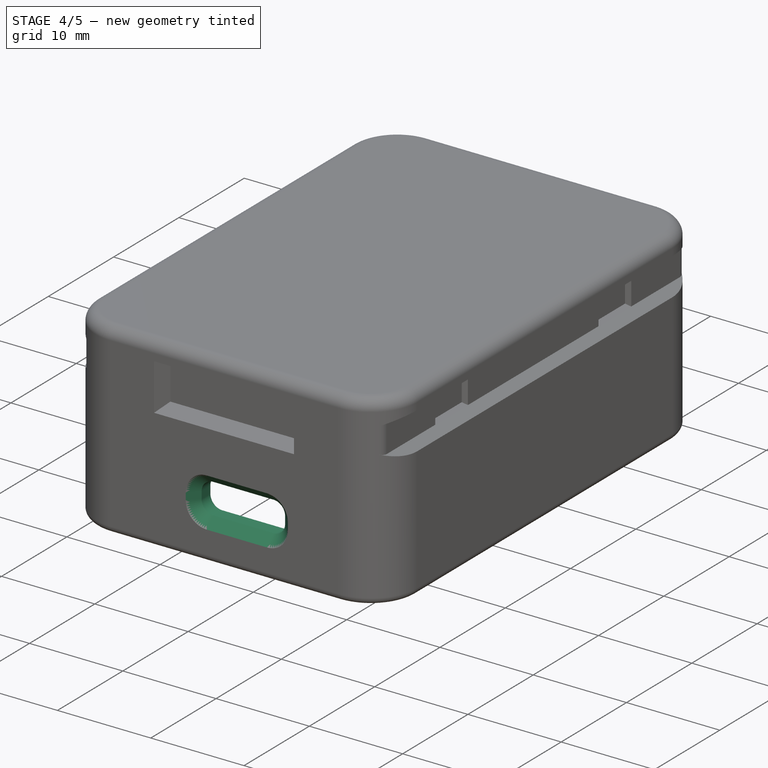
[diagram: stage 4 of 5 — iso view after this stage's code; geometry added in this stage tinted green]
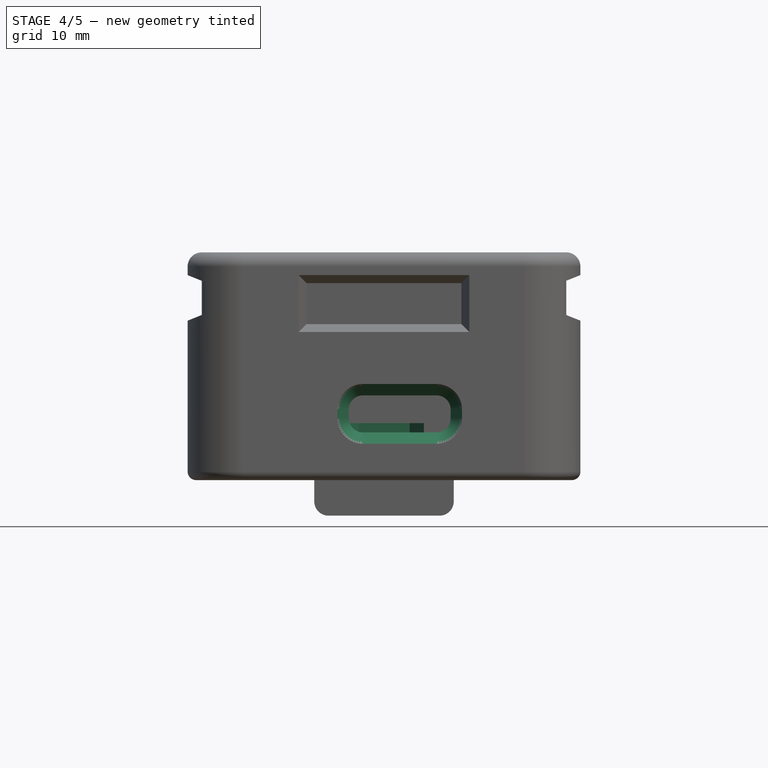
[diagram: stage 4 of 5 — front view after this stage's code; geometry added in this stage tinted green]
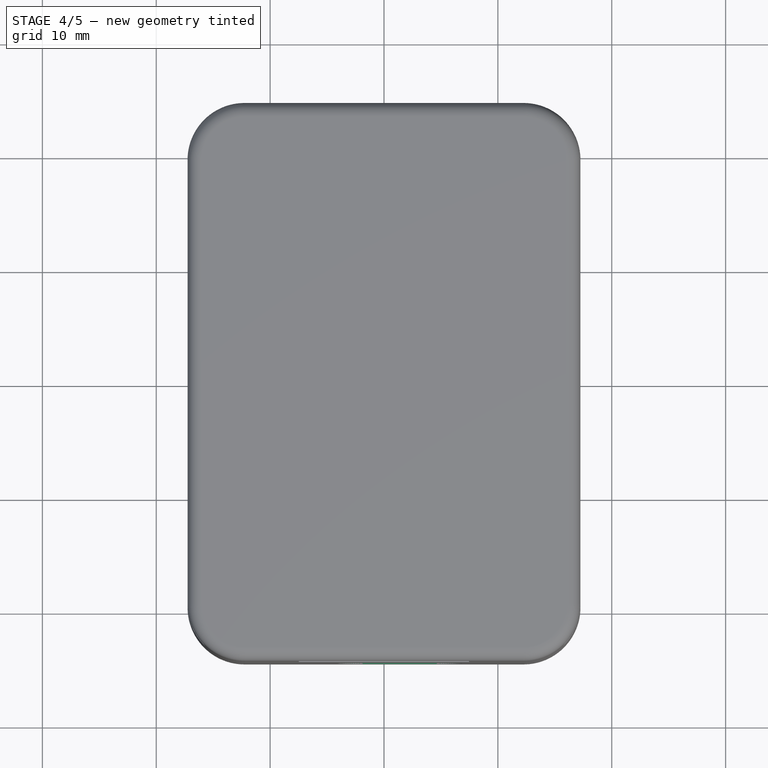
[diagram: stage 4 of 5 — top view after this stage's code; geometry added in this stage tinted green]
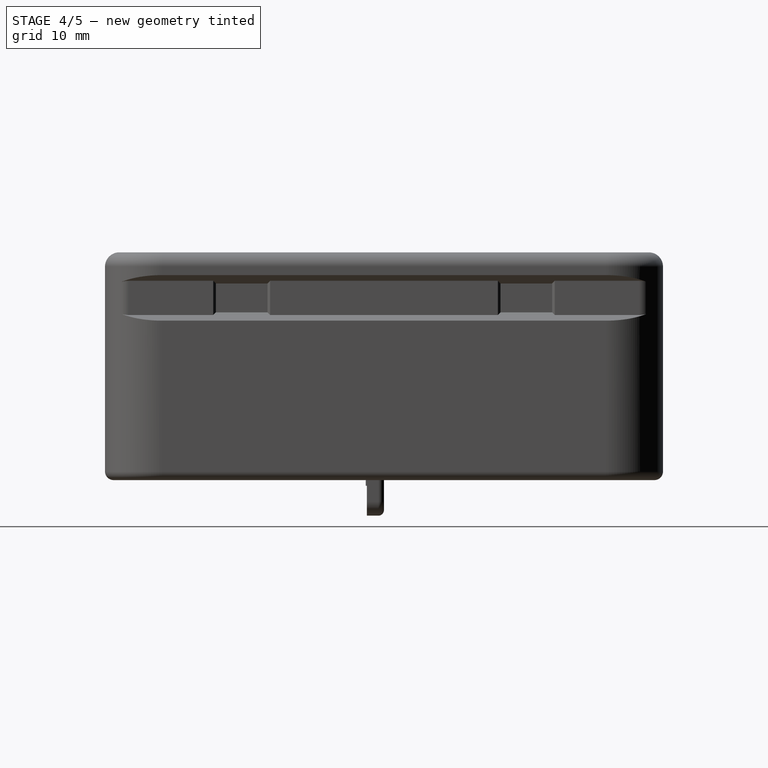
[diagram: stage 4 of 5 — right view after this stage's code; geometry added in this stage tinted green]
FEATURE [PartDesign::Pocket] Pocket003  label="Faceplate Removal Pocket"
  BaseFeature = -> Fillet012
  Direction = (0,0,-1)
  Length = 5
  Length2 = 5
  Profile = -> Sketch005
  ReferenceAxis = -> Sketch005 [N_Axis]
  Refine = true
  Reversed = true
  Suppressed = false
  Type = 0
FEATURE [PartDesign::Pocket] Pocket005  label="Port Pocket"
  BaseFeature = -> Pocket003
  Direction = (0,1,-2e-16)
  Length = 5
  Length2 = 5
  Profile = -> Sketch007
  ReferenceAxis = -> Sketch007 [N_Axis]
  Refine = true
  Suppressed = false
  Type = 0
FEATURE [PartDesign::Fillet] Fillet005  label="Port Corner Fillet"
  Base = -> Pocket005 [Edge78,Edge76,Edge74,Edge80]
  BaseFeature = -> Pocket005
  Radius = 1.25
  Refine = true
  SupportTransform = false
  Suppressed = false
  UseAllEdges = false
FEATURE [PartDesign::Chamfer] Chamfer  label="Port Edge Chamfer"
  Angle = 45
  Base = -> Fillet005 [Edge5]
  BaseFeature = -> Fillet005
  ChamferType = 0
  FlipDirection = false
  Refine = true
  Size = 1
  Size2 = 1
  SupportTransform = false
  Suppressed = false
  UseAllEdges = false
FEATURE [PartDesign::Fillet] Fillet009  label="Port Inner Fillet"
  Base = -> Chamfer [Edge80]
  BaseFeature = -> Chamfer
  Radius = 0.25
  Refine = true
  SupportTransform = false
  Suppressed = false
  UseAllEdges = false
FEATURE [PartDesign::Pocket] Pocket009  label="Power Switch Pocket"
  BaseFeature = -> Fillet009
  Direction = (1,0,0)
  Length = 5
  Length2 = 5
  Profile = -> Sketch013
  ReferenceAxis = -> Sketch013 [N_Axis]
  Refine = true
  Suppressed = true
  Type = 2
FEATURE [PartDesign::Pocket] Pocket012  label="Reset Access Pocket"
  BaseFeature = -> Pocket009
  Direction = (1,0,0)
  Length = 5
  Length2 = 5
  Profile = -> Sketch018
  ReferenceAxis = -> Sketch018 [N_Axis]
  Refine = true
  Suppressed = false
  Type = 2
FEATURE [PartDesign::Chamfer] Chamfer003  label="Reset Access Chamfer"
  Angle = 45
  Base = -> Pocket012 [Edge204]
  BaseFeature = -> Pocket012
  ChamferType = 0
  FlipDirection = false
  Refine = true
  Size = 0.5
  Size2 = 1
  SupportTransform = false
  Suppressed = false
  UseAllEdges = false
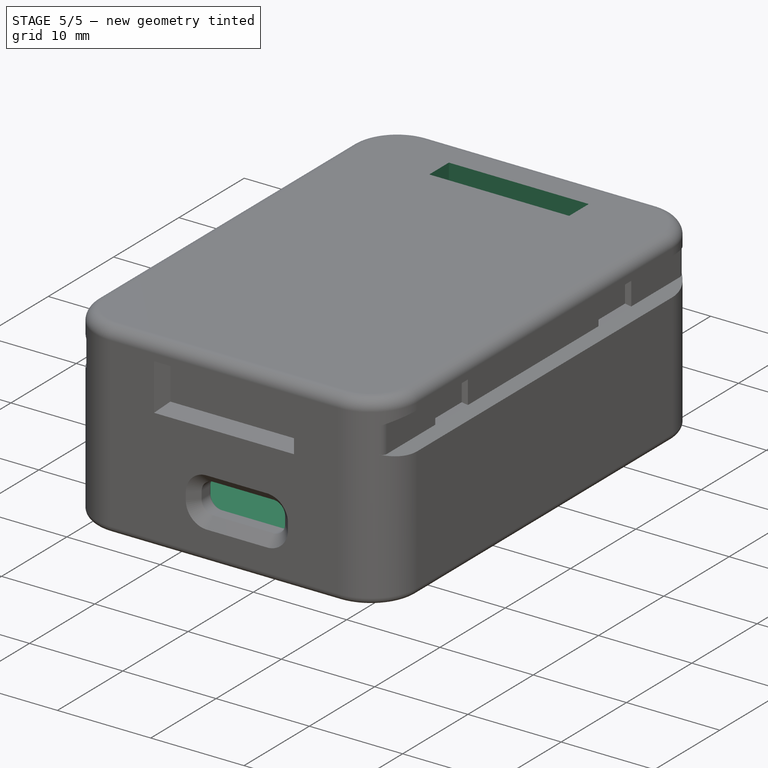
[diagram: stage 5 of 5 — iso view after this stage's code; geometry added in this stage tinted green]
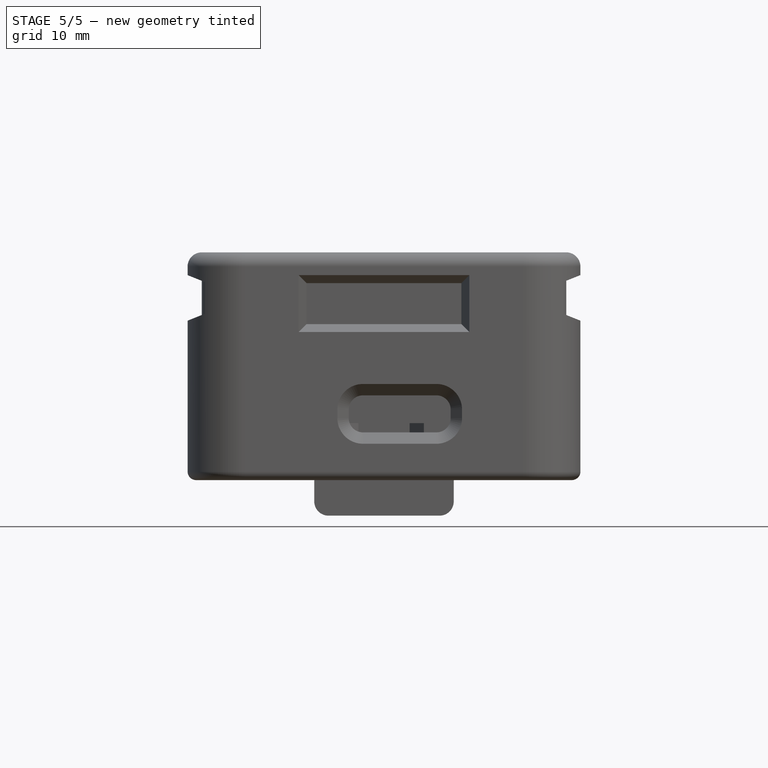
[diagram: stage 5 of 5 — front view after this stage's code; geometry added in this stage tinted green]
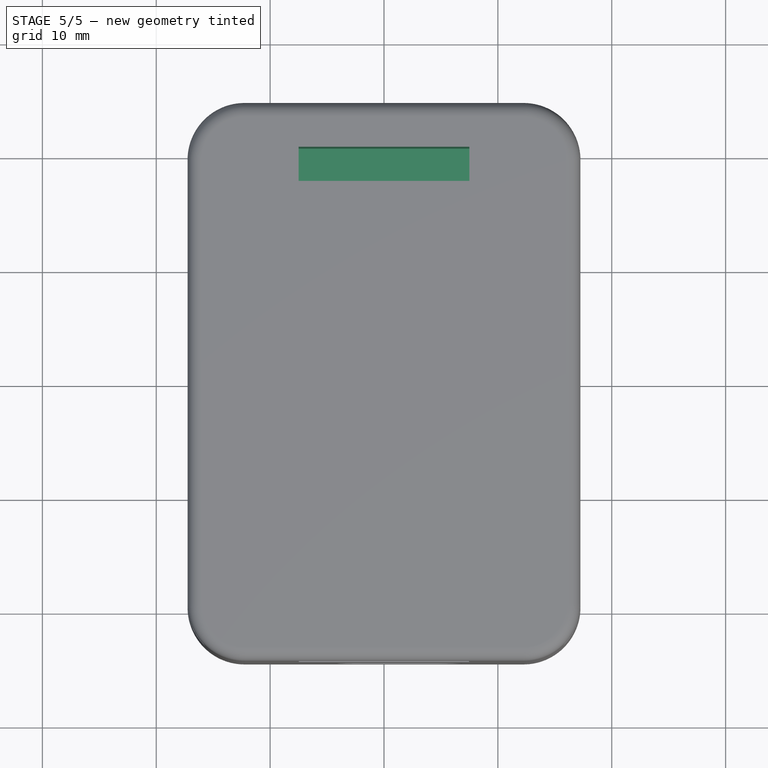
[diagram: stage 5 of 5 — top view after this stage's code; geometry added in this stage tinted green]
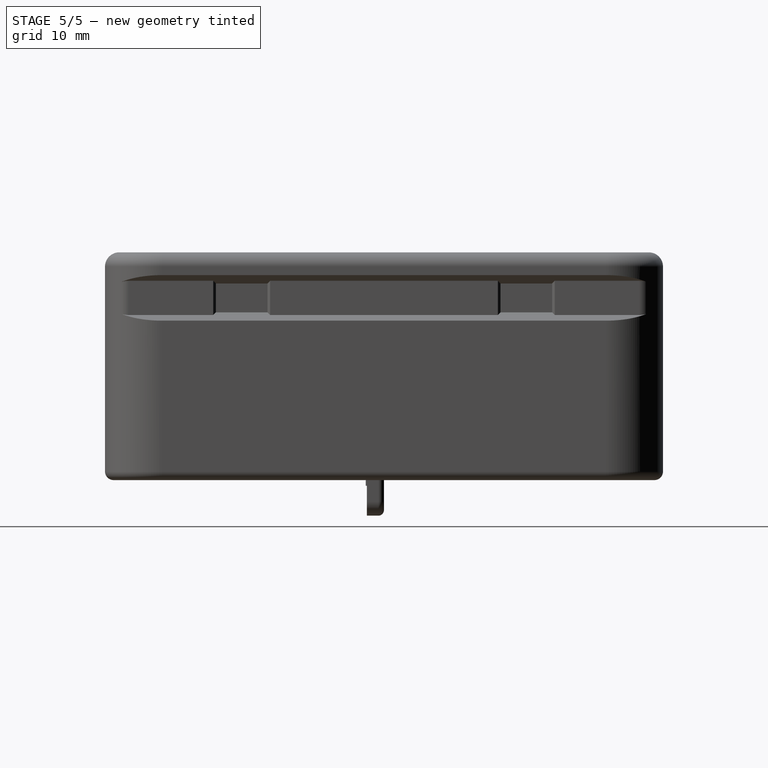
[diagram: stage 5 of 5 — right view after this stage's code; geometry added in this stage tinted green]
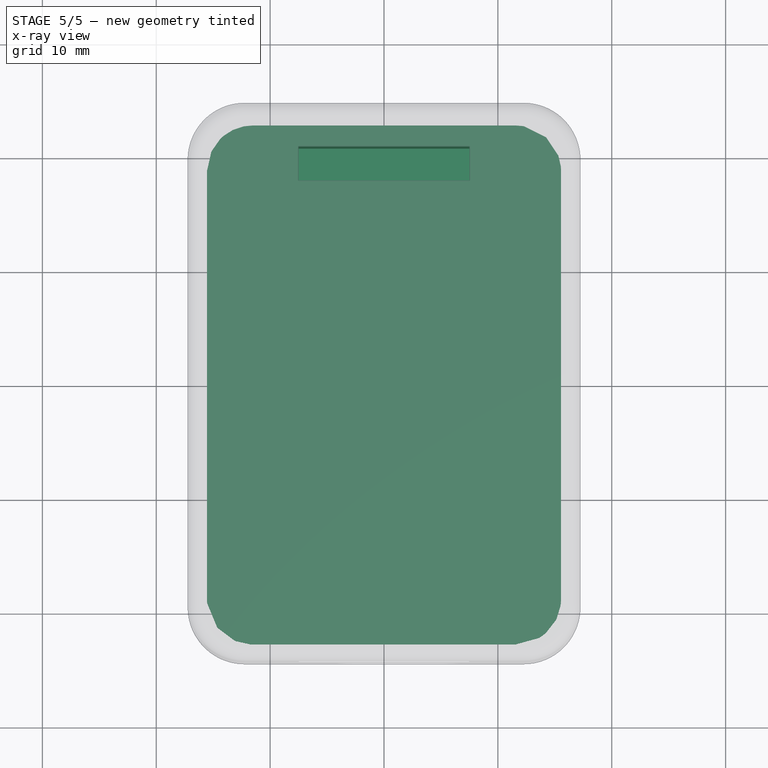
[diagram: stage 5 of 5 — x-ray composite at the top view; earlier geometry ghosted, this stage's added geometry solid]
FEATURE [Sketcher::SketchObject] Sketch010  label="Button Placements"
  ArcFitTolerance = 1e-06
  AttachmentSupport = -> [XY_Plane]
  FullyConstrained = true
  MakeInternals = false
  MapMode = 5
FEATURE [PartDesign::Pad] Pad001  label="Base Geometry001"
  Direction = (0,0,1)
  Length = 3
  Length2 = 10
  Profile = -> Binder
  Refine = true
  Suppressed = false
  Type = 0
FEATURE [PartDesign::Pocket] Pocket010  label="Multi-Button Pocket"
  BaseFeature = -> Chamfer003
  Direction = (1,0,0)
  Length = 5
  Length2 = 5
  Profile = -> Sketch016
  ReferenceAxis = -> Sketch016 [N_Axis]
  Refine = true
  Suppressed = true
  Type = 2
FEATURE [PartDesign::Fillet] Fillet008  label="Multi-Button Pocket Fillet"
  Base = -> Pocket010 [?Edge46,?Edge40,?Edge44,?Edge42]
  BaseFeature = -> Pocket010
  Radius = 1
  Refine = true
  SupportTransform = false
  Suppressed = true
  UseAllEdges = false
FEATURE [PartDesign::Chamfer] Chamfer002  label="Multi-Button Pocket Chamfer"
  Angle = 45
  Base = -> Fillet008 [?Edge5]
  BaseFeature = -> Fillet008
  ChamferType = 0
  FlipDirection = false
  Refine = true
  Size = 0.5
  Size2 = 1
  SupportTransform = false
  Suppressed = true
  UseAllEdges = false
FEATURE [PartDesign::Pocket] Pocket011  label="Multi-Button Base Pocket"
  BaseFeature = -> Chamfer002
  Direction = (-1,0,0)
  Length = 5
  Length2 = 5
  Profile = -> Sketch017
  ReferenceAxis = -> Sketch017 [N_Axis]
  Refine = true
  Reversed = true
  Suppressed = true
  Type = 0
FEATURE [Sketcher::SketchObject] Sketch021
  ArcFitTolerance = 1e-06
  AttachmentSupport = -> [Pocket011]
  FullyConstrained = false
  MakeInternals = false
  MapMode = 5
  Placement = pos=(0,0,10.5) rot=(1,0,0;3.14159rad)
  sketch-geometry (5):
    g0: LineSegment StartX=-7.5 StartY=-20.6419 StartZ=0 EndX=7.5 EndY=-20.6419 EndZ=0
    g1: LineSegment StartX=7.5 StartY=-20.6419 StartZ=0 EndX=7.5 EndY=-17.6419 EndZ=0
    g2: LineSegment StartX=7.5 StartY=-17.6419 StartZ=0 EndX=-7.5 EndY=-17.6419 EndZ=0
    g3: LineSegment StartX=-7.5 StartY=-17.6419 StartZ=0 EndX=-7.5 EndY=-20.6419 EndZ=0
    g4: GeomPoint [constr] X=0 Y=-19.1419 Z=0
  constraints (12):
    c: Coincident(g0,g1)
    c: Coincident(g1,g2)
    c: Coincident(g2,g3)
    c: Coincident(g3,g0)
    c: Horizontal(g0)
    c: Horizontal(g2)
    c: Vertical(g1)
    c: Vertical(g3)
    c: Symmetric(g2,g0,g4)
    c: PointOnObject(g4,g-2)
    c: DistanceX(g2,g2) = 15
    c: Distance(g1,g1) = 3
FEATURE [PartDesign::Pocket] Pocket014  label="Board Removal Pocket"
  BaseFeature = -> Pocket011
  Direction = (0,0,1)
  Length = 5
  Length2 = 5
  Profile = -> Sketch021
  ReferenceAxis = -> Sketch021 [N_Axis]
  Refine = true
  Suppressed = false
  Type = 1
FEATURE [Sketcher::SketchObject] Sketch022
  ArcFitTolerance = 1e-06
  AttachmentSupport = -> [Pocket014]
  ExternalGeometry = -> [Pocket014]
  FullyConstrained = true
  MakeInternals = false
  MapMode = 5
  Placement = pos=(0,0,10.5) rot=(1,0,0;3.14159rad)
  sketch-geometry (4):
    g0: LineSegment StartX=-15.55 StartY=-8.05 StartZ=0 EndX=-15.55 EndY=-13.05 EndZ=0
    g1: LineSegment StartX=-15.55 StartY=-13.05 StartZ=0 EndX=-14.75 EndY=-13.05 EndZ=0
    g2: LineSegment StartX=-14.75 StartY=-13.05 StartZ=0 EndX=-14.75 EndY=-8.05 EndZ=0
    g3: LineSegment StartX=-14.75 StartY=-8.05 StartZ=0 EndX=-15.55 EndY=-8.05 EndZ=0
  constraints (11):
    c: Coincident(g0,g1)
    c: Coincident(g1,g2)
    c: Coincident(g2,g3)
    c: Coincident(g3,g0)
    c: Vertical(g0)
    c: Vertical(g2)
    c: Horizontal(g1)
    c: Horizontal(g3)
    c: PointOnObject(g0,g-3)
    c: Coincident(g1,g-4)
    c: PointOnObject(g0,g-5)
FEATURE [PartDesign::Pocket] Pocket015
  BaseFeature = -> Pocket014
  Direction = (0,0,1)
  Length = 5
  Length2 = 5
  Profile = -> Sketch022
  ReferenceAxis = -> Sketch022 [N_Axis]
  Refine = true
  Reversed = true
  Suppressed = true
  Type = 1
FEATURE [PartDesign::Body] Body  label="Lower Housing"
  AllowCompound = false
  Group = -> [Sketch,Sketch010,Sketch001,Sketch009,Pad,DatumPlane,Sketch002,DatumPlane001,Pocket,Sketch003,Pocket001,Sketch008,Pocket006,Mirrored001,Fillet,Fillet001,Fillet002,Sketch004,Pocket002,Sketch012,Fillet004,Pocket008,Mirrored,Pocket007,Sketch005,Sketch006,Mirrored002,Pocket004,Sketch024,Pad005,Mirrored003,Fillet003,Fillet012,Pocket003,Sketch007,Pocket005,Fillet005,Sketch013,Chamfer,Fillet009,Sketch014,+16 more]
  Origin = -> Origin
  Tip = -> Pocket015
FEATURE [App::DocumentObjectGroup] Group  label="Housing"
  Group = -> [Spreadsheet,Body,Body001,Body002]
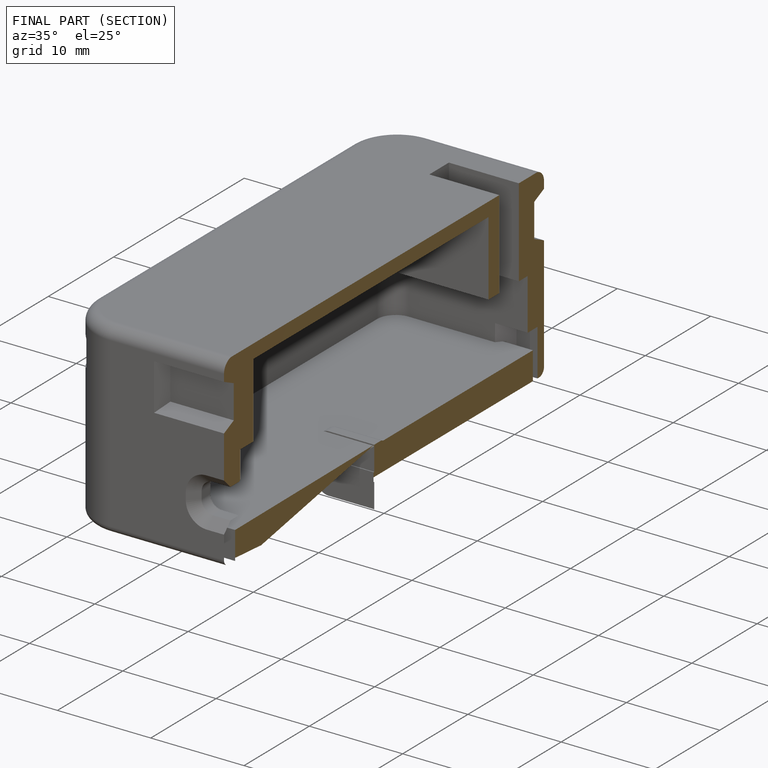
[diagram: finished part — half-section view (interior)]
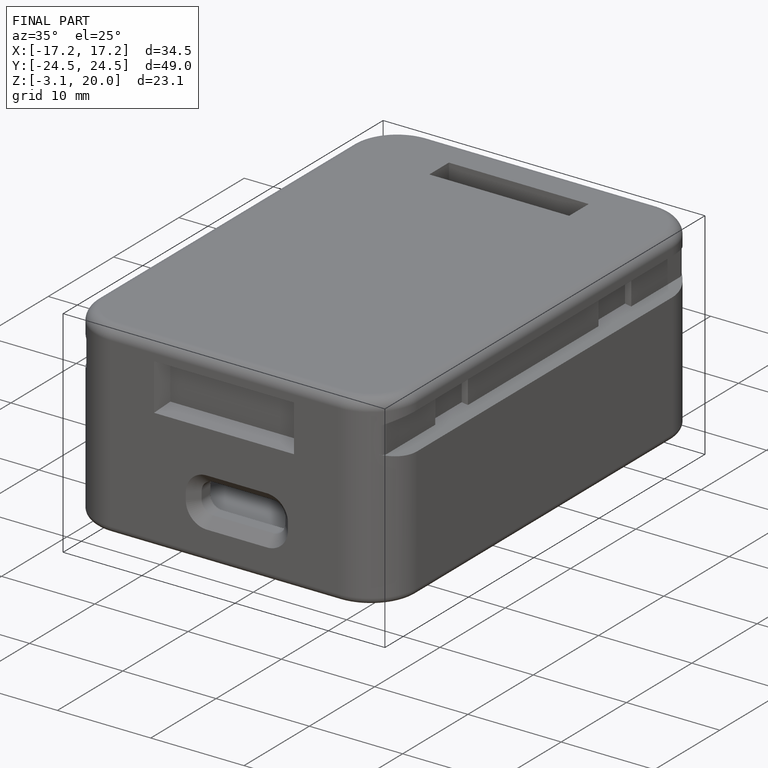
[diagram: finished part — iso view with bounding-box wireframe]
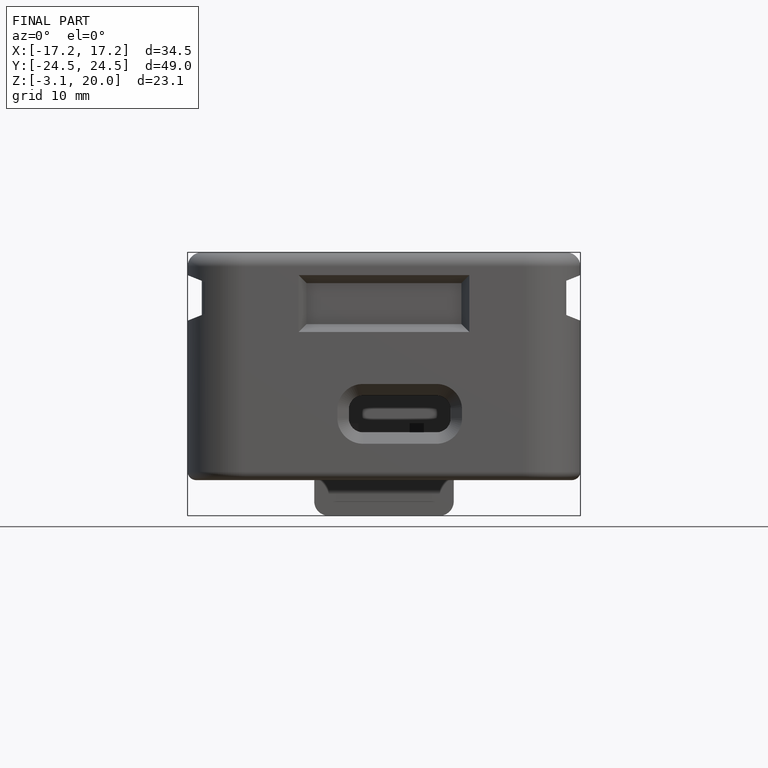
[diagram: finished part — front view with bounding-box wireframe]
